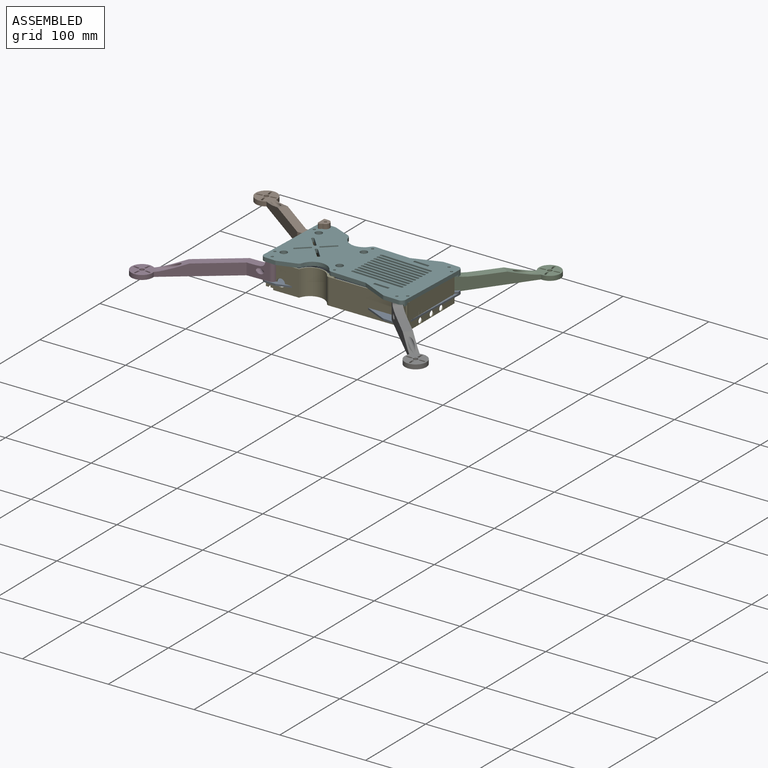
[diagram: assembled view]
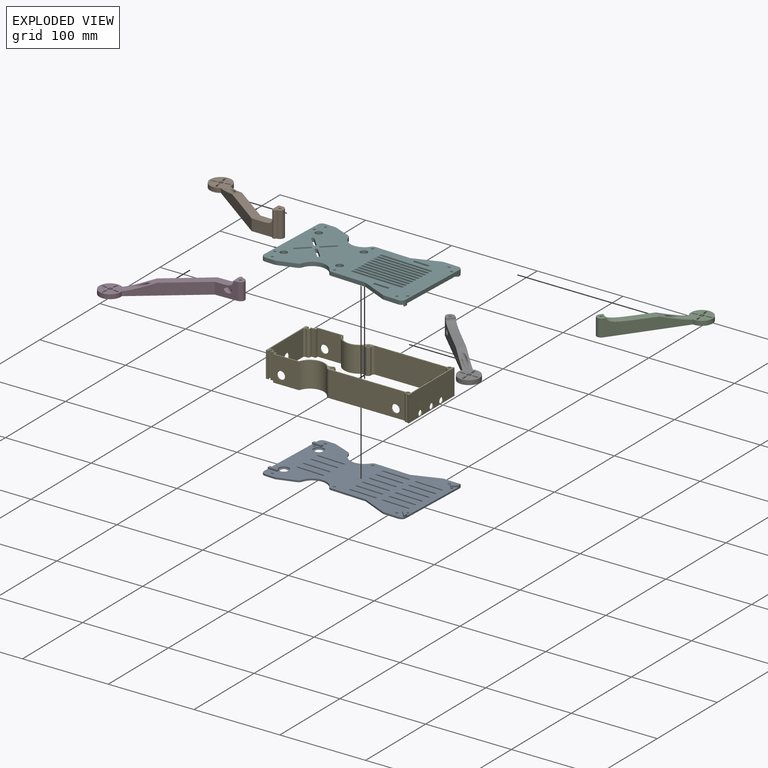
[diagram: exploded view]
GUIDED TOUR — MATED ASSEMBLY (Onshape document 4e5b3a6867eaf1757f32c168, AutoMate assembly 4e5b3a6867eaf1757f32c168_59065921e5721d0c5764df2e_1922234d884349384cbc1616_default)

This assembly has 7 components, labeled P0..P6 below (a component is one placed occurrence of a part; the same part can appear more than once), held together by 5 mates. A mate is a constraint between two components; its type names the relative motion it leaves free:
  REVOLUTE — leaves rotation about the listed axis free (a hinge).
Axis/direction vectors are unit vectors and 'through' points are millimeter coordinates, both in the assembly's world frame.

MATES
  1. REVOLUTE "Revolute 3": P6 <-> P5, axis (0.000, 0.000, 1.000) through (14.46, -40.16, 47.06) mm
  2. REVOLUTE "Revolute 2": P0 <-> P1, axis (0.000, 0.000, 1.000) through (-131.00, 48.73, 27.06) mm
  3. REVOLUTE "Revolute 6": P4 <-> P5, axis (0.000, 0.000, -1.000) through (22.74, -33.84, 47.06) mm
  4. REVOLUTE "Revolute 4": P3 <-> P5, axis (0.000, 0.000, 1.000) through (-134.28, -34.95, 47.06) mm
  5. REVOLUTE "Revolute 5": P2 <-> P0, axis (0.000, 0.000, -1.000) through (17.69, 42.28, 27.06) mm

ASSEMBLY ORDER
  1. P5 — the base component [order heuristic]
  2. P4 — core [order heuristic]
  3. P1 — core [order heuristic]
  4. P0 — core [order heuristic]
  5. P3 [order verified]
  6. P2 [order verified]
  7. P6 [order verified]
(P3 verified with a relaxed clearance tolerance: the source model stores slight part interference there.)
Order-tag legend:
  [order verified] — this step's position reverses a verified removal order: the component was checked to insert without passing through the ones already placed.
  [order heuristic] — the first 4 components form the assembly's core: parts whose collision-free extraction could not be verified, listed in mate-graph order.

Of the 7 components, 3 carry the full construction recipe — the FeatureScript program that regenerates the part's solid from scratch; the rest are supplied as boundary geometry only.
Each toured component is shown spotlighted twice — in the assembled view, then in the exploded view, where a leader line traces a displaced component back to its assembled socket (saturated green if recipe-attached, orange if geometry-only; every other component desaturated gray) — followed by its recipe or geometry summary and the mates that hold it.
NOTE — this tour is split across 2 documents so each fits a 32k-token context. This is document 1: the component sections continue in the remaining 1 document, each repeating the header above.
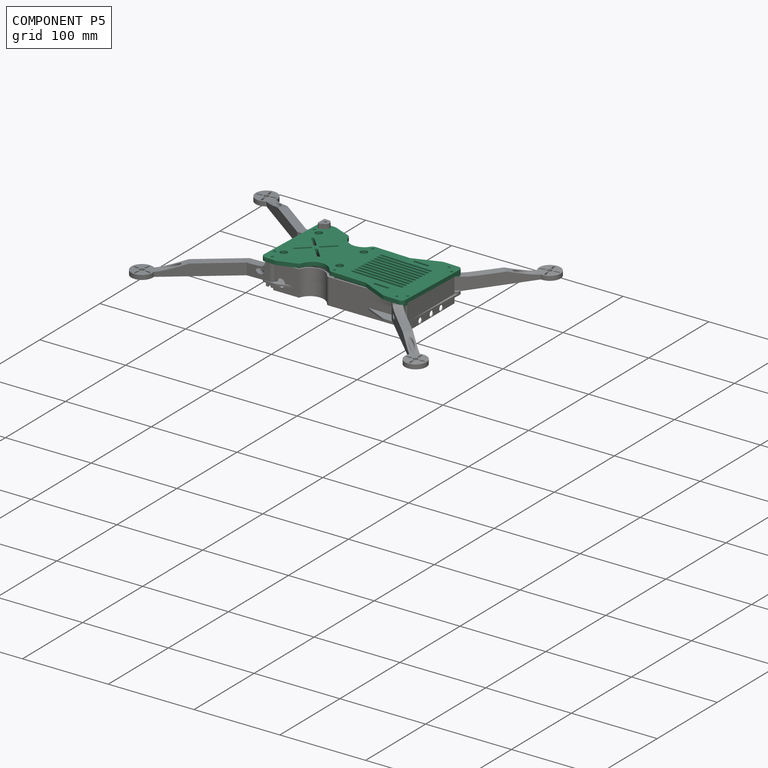
[diagram: component P5 — assembled]
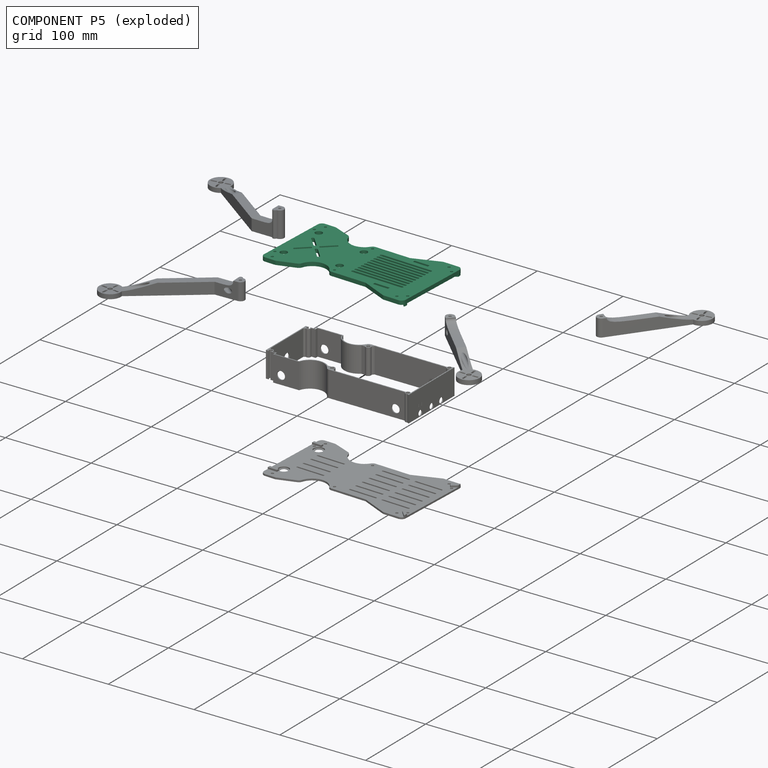
[diagram: component P5 — exploded]
COMPONENT P5 — recipe-attached (CADFS 00454907, mesh-verified: the recipe's output STEP matches this component's geometry to below the mesh-comparison resolution (tessellation chordal tolerance ~0.292 mm)).
Held by: REVOLUTE mate "Revolute 3" to P6; REVOLUTE mate "Revolute 6" to P4; REVOLUTE mate "Revolute 4" to P3.
Construction recipe (FeatureScript — the CAD program that rebuilds this solid; sketch coordinates are in the units given by the * unit suffixes, e.g. mm):

FeatureScript 2433;
import(path : "onshape/std/geometry.fs", version : "2433.0");
import(path : "onshape/std/common.fs", version : "2433.0");
const mm = millimeter;
const VERTEX = EntityType.VERTEX;
const EDGE = EntityType.EDGE;
const FACE = EntityType.FACE;
const BODY = EntityType.BODY;
function v(x, y){return vector(x, y);}
function OD(order){return orderDisambiguation(order);}
function OSD(set){return originalSetDisambiguation(set);}
function TD(topology){return topologyDisambiguation(topology);}
function TDD(query){return trueDependencyDisambiguation(query);}
function sQuery(a, b, c) {return sketchEntityQuery(a, b, c);}

annotation { "Feature Type Name" : "Feature", "Feature Type Description" : "" }
export const myFeature = defineFeature(function(context is Context, id is Id, definition is map)
    precondition{}
    {
        {
            var Q0;
            Q0=qCreatedBy(makeId("Top.planeOp"),FACE);
            var sketch = newSketch(context, id + "F0", { "sketchPlane" : qUnion([Q0])});
            skLineSegment(sketch, "E0.top", {"start": v(-158.33, 18) * mm, "end": v(-122.33, 18) * mm, "construction": true});
            skLineSegment(sketch, "E1.top", {"start": v(-2.46, 31.5) * mm, "end": v(-72.46, 31.5) * mm, "construction": true});
            skLineSegment(sketch, "E1.left", {"start": v(-2.46, 0) * mm, "end": v(-2.46, 31.5) * mm, "construction": true});
            skLineSegment(sketch, "E1.right", {"start": v(-72.46, 0) * mm, "end": v(-72.46, 31.5) * mm, "construction": true});
            skLineSegment(sketch, "E2.top", {"start": v(-5, 47.5) * mm, "end": v(-22.22, 47.5) * mm});
            skLineSegment(sketch, "E2.left", {"start": v(0, 35) * mm, "end": v(0, 42.5) * mm});
            skPoint(sketch, "E3.startSnap0", {"position": v(-23.2, 41.25) * mm});
            skPoint(sketch, "E3.startSnap1", {"position": v(-11.6, 47.5) * mm});
            skArc(sketch, "E4", {"start": v(-128.81, 36.72) * mm, "mid": v(-115.3, 25.02) * mm, "end": v(-99.14, 32.63) * mm});
            skLineSegment(sketch, "E5.trimOffspring", {"start": v(-94.88, 35) * mm, "end": v(-53.78, 35) * mm});
            skPoint(sketch, "E3.start.orphan", {"position": v(-11.6, 41.25) * mm});
            skCircle(sketch, "E6", {"center": v(-113.07, 41.25) * mm, "radius": 12.55 * mm, "construction": true});
            skLineSegment(sketch, "E7.top", {"start": v(-165, 47.5) * mm, "end": v(-149.65, 47.5) * mm});
            skLineSegment(sketch, "E7.left", {"start": v(-170, 35) * mm, "end": v(-170, 42.5) * mm});
            skLineSegment(sketch, "E8", {"start": v(-160.43, 41.87) * mm, "end": v(-136.46, 59) * mm, "construction": true});
            skPoint(sketch, "E8.startSnap0", {"position": v(-149.65, 47.5) * mm});
            skPoint(sketch, "E8.startSnap1", {"position": v(-170, 41.25) * mm});
            skLineSegment(sketch, "E9", {"start": v(-136.46, 59) * mm, "end": v(-62.44, 61.85) * mm, "construction": true});
            skLineSegment(sketch, "E10", {"start": v(-160.43, 41.87) * mm, "end": v(-62.44, 61.85) * mm, "construction": true});
            skCircle(sketch, "E11", {"center": v(-62.44, 61.85) * mm, "radius": 12.62 * mm, "construction": true});
            skLineSegment(sketch, "E12", {"start": v(-140.33, 0) * mm, "end": v(-158.33, 18) * mm, "construction": true});
            skLineSegment(sketch, "E13", {"start": v(-140.33, 0) * mm, "end": v(-122.33, 18) * mm, "construction": true});
            skArc(sketch, "E14", {"start": v(-153.5, 15.3) * mm, "mid": v(-155.63, 15.3) * mm, "end": v(-155.63, 13.18) * mm});
            skArc(sketch, "E15", {"start": v(-144.87, 2.42) * mm, "mid": v(-142.75, 2.42) * mm, "end": v(-142.75, 4.54) * mm});
            skArc(sketch, "E16", {"start": v(-137.91, 4.54) * mm, "mid": v(-137.91, 2.42) * mm, "end": v(-135.8, 2.42) * mm});
            skArc(sketch, "E17", {"start": v(-124.83, 13.38) * mm, "mid": v(-124.83, 15.5) * mm, "end": v(-126.95, 15.5) * mm});
            skLineSegment(sketch, "E18", {"start": v(-142.75, 4.54) * mm, "end": v(-153.5, 15.3) * mm});
            skLineSegment(sketch, "E19", {"start": v(-144.87, 2.42) * mm, "end": v(-155.63, 13.18) * mm});
            skLineSegment(sketch, "E20", {"start": v(-137.91, 4.54) * mm, "end": v(-126.95, 15.5) * mm});
            skLineSegment(sketch, "E21", {"start": v(-135.8, 2.42) * mm, "end": v(-124.83, 13.38) * mm});
            skLineSegment(sketch, "E22", {"start": v(-24.11, 47.13) * mm, "end": v(-53.78, 35) * mm});
            skCircle(sketch, "E23", {"center": v(-157.56, 27.6) * mm, "radius": 4.06 * mm});
            skCircle(sketch, "E24", {"center": v(-97.04, 19.15) * mm, "radius": 4.06 * mm});
            skPoint(sketch, "E2.bottom.end.orphan", {"position": v(-23.2, 35) * mm});
            skLineSegment(sketch, "E25.bottom", {"start": v(-28.53, 30) * mm, "end": v(-46.4, 30) * mm});
            skLineSegment(sketch, "E25.top", {"start": v(-28.53, 33) * mm, "end": v(-46.4, 33) * mm});
            skLineSegment(sketch, "E25.left", {"start": v(-28.53, 30) * mm, "end": v(-28.53, 33) * mm});
            skLineSegment(sketch, "E25.right", {"start": v(-46.4, 30) * mm, "end": v(-46.4, 33) * mm});
            skPoint(sketch, "E25.middle", {"position": v(-37.46, 31.5) * mm});
            skLineSegment(sketch, "E26", {"start": v(-131.92, 40.04) * mm, "end": v(-152.56, 47.5) * mm});
            skPoint(sketch, "E7.right.end.orphan", {"position": v(-129.3, 47.5) * mm});
            skPoint(sketch, "E27.visualSharp", {"position": v(-170, 47.5) * mm});
            skArc(sketch, "E27.filletArc", {"start": v(-165, 47.5) * mm, "mid": v(-168.54, 46.04) * mm, "end": v(-170, 42.5) * mm});
            skLineSegment(sketch, "E28", {"start": v(-2.46, 0) * mm, "end": v(-170, 0) * mm, "construction": true});
            skLineSegment(sketch, "E29", {"start": v(0, 35) * mm, "end": v(0, 0) * mm});
            skLineSegment(sketch, "E30", {"start": v(-170, 35) * mm, "end": v(-170, 0) * mm});
            skPoint(sketch, "E31.visualSharp", {"position": v(-129.3, 39.1) * mm});
            skArc(sketch, "E31.filletArc", {"start": v(-128.81, 36.72) * mm, "mid": v(-129.96, 38.75) * mm, "end": v(-131.92, 40.04) * mm});
            skPoint(sketch, "E32.visualSharp", {"position": v(-23.2, 47.5) * mm});
            skArc(sketch, "E32.filletArc", {"start": v(-22.22, 47.5) * mm, "mid": v(-23.19, 47.4) * mm, "end": v(-24.11, 47.13) * mm});
            skPoint(sketch, "E33.visualSharp", {"position": v(0, 47.5) * mm});
            skArc(sketch, "E33.filletArc", {"start": v(0, 42.5) * mm, "mid": v(-1.46, 46.04) * mm, "end": v(-5, 47.5) * mm});
            skPoint(sketch, "E34.visualSharp", {"position": v(-97.92, 35) * mm});
            skArc(sketch, "E34.filletArc", {"start": v(-94.88, 35) * mm, "mid": v(-97.32, 34.37) * mm, "end": v(-99.14, 32.63) * mm});
            skCircle(sketch, "E35", {"center": v(-94.88, 30) * mm, "radius": 1.5 * mm});
            skCircle(sketch, "E36", {"center": v(-165.6, 31.16) * mm, "radius": 1.5 * mm});
            skCircle(sketch, "E37", {"center": v(-3.57, 34.62) * mm, "radius": 1.5 * mm});
            skArc(sketch, "E38.MirrorCS", {"start": v(-22.22, -47.5) * mm, "mid": v(-23.19, -47.4) * mm, "end": v(-24.11, -47.13) * mm});
            skCircle(sketch, "E39.MirrorC", {"center": v(-94.88, -30) * mm, "radius": 1.5 * mm});
            skArc(sketch, "E40.MirrorCS", {"start": v(-137.91, -4.54) * mm, "mid": v(-137.91, -2.42) * mm, "end": v(-135.8, -2.42) * mm});
            skArc(sketch, "E41.MirrorCS", {"start": v(-144.87, -2.42) * mm, "mid": v(-142.75, -2.42) * mm, "end": v(-142.75, -4.54) * mm});
            skLineSegment(sketch, "E42.MirrorCS", {"start": v(-28.53, -30) * mm, "end": v(-28.53, -33) * mm});
            skArc(sketch, "E43.MirrorCS", {"start": v(-153.5, -15.3) * mm, "mid": v(-155.63, -15.3) * mm, "end": v(-155.63, -13.18) * mm});
            skArc(sketch, "E44.MirrorCS", {"start": v(-94.88, -35) * mm, "mid": v(-97.32, -34.37) * mm, "end": v(-99.14, -32.63) * mm});
            skLineSegment(sketch, "E45.MirrorCS", {"start": v(-46.4, -30) * mm, "end": v(-46.4, -33) * mm});
            skArc(sketch, "E46.MirrorCS", {"start": v(-124.83, -13.38) * mm, "mid": v(-124.83, -15.5) * mm, "end": v(-126.95, -15.5) * mm});
            skArc(sketch, "E47.MirrorCS", {"start": v(-128.81, -36.72) * mm, "mid": v(-129.96, -38.75) * mm, "end": v(-131.92, -40.04) * mm});
            skArc(sketch, "E48.MirrorCS", {"start": v(-165, -47.5) * mm, "mid": v(-168.54, -46.04) * mm, "end": v(-170, -42.5) * mm});
            skCircle(sketch, "E49.MirrorC", {"center": v(-3.57, -34.62) * mm, "radius": 1.5 * mm});
            skArc(sketch, "E50.MirrorCS", {"start": v(0, -42.5) * mm, "mid": v(-1.46, -46.04) * mm, "end": v(-5, -47.5) * mm});
            skCircle(sketch, "E51.MirrorC", {"center": v(-165.6, -31.16) * mm, "radius": 1.5 * mm});
            skLineSegment(sketch, "E52.MirrorCS", {"start": v(-170, -35) * mm, "end": v(-170, -42.5) * mm});
            skLineSegment(sketch, "E53.MirrorCS", {"start": v(-2.46, -31.5) * mm, "end": v(-72.46, -31.5) * mm, "construction": true});
            skLineSegment(sketch, "E54.MirrorCS", {"start": v(-24.11, -47.13) * mm, "end": v(-53.78, -35) * mm});
            skLineSegment(sketch, "E55.MirrorCS", {"start": v(-165, -47.5) * mm, "end": v(-149.65, -47.5) * mm});
            skCircle(sketch, "E56.MirrorC", {"center": v(-157.56, -27.6) * mm, "radius": 4.06 * mm});
            skLineSegment(sketch, "E57.MirrorCS", {"start": v(-135.8, -2.42) * mm, "end": v(-124.83, -13.38) * mm});
            skPoint(sketch, "E58.MirrorP", {"position": v(-37.46, -31.5) * mm});
            skPoint(sketch, "E59.MirrorP", {"position": v(-23.2, -35) * mm});
            skPoint(sketch, "E60.MirrorP", {"position": v(-129.3, -39.1) * mm});
            skPoint(sketch, "E61.MirrorP", {"position": v(-11.6, -41.25) * mm});
            skLineSegment(sketch, "E62.MirrorCS", {"start": v(-72.46, 0) * mm, "end": v(-72.46, -31.5) * mm, "construction": true});
            skLineSegment(sketch, "E63.MirrorCS", {"start": v(-5, -47.5) * mm, "end": v(-22.22, -47.5) * mm});
            skLineSegment(sketch, "E64.MirrorCS", {"start": v(-94.88, -35) * mm, "end": v(-53.78, -35) * mm});
            skArc(sketch, "E65.MirrorCS", {"start": v(-128.81, -36.72) * mm, "mid": v(-115.3, -25.02) * mm, "end": v(-99.14, -32.63) * mm});
            skPoint(sketch, "E66.MirrorP", {"position": v(-149.65, -47.5) * mm});
            skPoint(sketch, "E67.MirrorP", {"position": v(-23.2, -47.5) * mm});
            skLineSegment(sketch, "E68.MirrorCS", {"start": v(-170, -35) * mm, "end": v(-170, 0) * mm});
            skLineSegment(sketch, "E69.MirrorCS", {"start": v(0, -35) * mm, "end": v(0, -42.5) * mm});
            skPoint(sketch, "E70.MirrorP", {"position": v(-129.3, -47.5) * mm});
            skCircle(sketch, "E71.MirrorC", {"center": v(-113.07, -41.25) * mm, "radius": 12.55 * mm, "construction": true});
            skLineSegment(sketch, "E72.MirrorCS", {"start": v(-160.43, -41.87) * mm, "end": v(-136.46, -59) * mm, "construction": true});
            skLineSegment(sketch, "E73.MirrorCS", {"start": v(-158.33, -18) * mm, "end": v(-122.33, -18) * mm, "construction": true});
            skPoint(sketch, "E74.MirrorP", {"position": v(0, -47.5) * mm});
            skLineSegment(sketch, "E75.MirrorCS", {"start": v(-131.92, -40.04) * mm, "end": v(-152.56, -47.5) * mm});
            skPoint(sketch, "E76.MirrorP", {"position": v(-11.6, -47.5) * mm});
            skLineSegment(sketch, "E77.MirrorCS", {"start": v(-140.33, 0) * mm, "end": v(-122.33, -18) * mm, "construction": true});
            skLineSegment(sketch, "E78.MirrorCS", {"start": v(-2.46, 0) * mm, "end": v(-2.46, -31.5) * mm, "construction": true});
            skLineSegment(sketch, "E79.MirrorCS", {"start": v(-28.53, -30) * mm, "end": v(-46.4, -30) * mm});
            skPoint(sketch, "E80.MirrorP", {"position": v(-170, -41.25) * mm});
            skLineSegment(sketch, "E81.MirrorCS", {"start": v(-140.33, 0) * mm, "end": v(-158.33, -18) * mm, "construction": true});
            skLineSegment(sketch, "E82.MirrorCS", {"start": v(-28.53, -33) * mm, "end": v(-46.4, -33) * mm});
            skPoint(sketch, "E83.MirrorP", {"position": v(-97.92, -35) * mm});
            skLineSegment(sketch, "E84.MirrorCS", {"start": v(-160.43, -41.87) * mm, "end": v(-62.44, -61.85) * mm, "construction": true});
            skLineSegment(sketch, "E85.MirrorCS", {"start": v(0, -35) * mm, "end": v(0, 0) * mm});
            skLineSegment(sketch, "E86.MirrorCS", {"start": v(-136.46, -59) * mm, "end": v(-62.44, -61.85) * mm, "construction": true});
            skPoint(sketch, "E87.MirrorP", {"position": v(-170, -47.5) * mm});
            skCircle(sketch, "E88.MirrorC", {"center": v(-97.04, -19.15) * mm, "radius": 4.06 * mm});
            skLineSegment(sketch, "E89.MirrorCS", {"start": v(-142.75, -4.54) * mm, "end": v(-153.5, -15.3) * mm});
            skLineSegment(sketch, "E90.MirrorCS", {"start": v(-137.91, -4.54) * mm, "end": v(-126.95, -15.5) * mm});
            skLineSegment(sketch, "E91.MirrorCS", {"start": v(-144.87, -2.42) * mm, "end": v(-155.63, -13.18) * mm});
            skCircle(sketch, "E92.MirrorC", {"center": v(-62.44, -61.85) * mm, "radius": 12.62 * mm, "construction": true});
            skCircle(sketch, "E93", {"center": v(-11.6, 41.25) * mm, "radius": 1.5 * mm});
            skCircle(sketch, "E94", {"center": v(-160.43, 41.87) * mm, "radius": 1.5 * mm});
            skCircle(sketch, "E95.MirrorC", {"center": v(-11.6, -41.25) * mm, "radius": 1.5 * mm});
            skCircle(sketch, "E96.MirrorC", {"center": v(-160.43, -41.87) * mm, "radius": 1.5 * mm});
            skSolve(sketch);
        }
        {
            var Q0;
            Q0 = qSketchRegion(id + "F0", true);
            extrude(context, id + "F1", {"entities" : qUnion([Q0]), "depth" : 4.5 * mm});
        }
        {
            var Q0;
            Q0=makeQuery(id+"F1.opExtrude","CAP_FACE",FACE,{"disambiguationData":[OSD([sQuery(id+"F0.wireOp",EDGE,"E2.top"),sQuery(id+"F0.wireOp",EDGE,"E2.left"),sQuery(id+"F0.wireOp",EDGE,"E4"),sQuery(id+"F0.wireOp",EDGE,"E5.trimOffspring"),sQuery(id+"F0.wireOp",EDGE,"E7.top"),sQuery(id+"F0.wireOp",EDGE,"E7.left"),sQuery(id+"F0.wireOp",EDGE,"E14"),sQuery(id+"F0.wireOp",EDGE,"E15"),sQuery(id+"F0.wireOp",EDGE,"E16"),sQuery(id+"F0.wireOp",EDGE,"E17"),sQuery(id+"F0.wireOp",EDGE,"E18"),sQuery(id+"F0.wireOp",EDGE,"E19"),sQuery(id+"F0.wireOp",EDGE,"E20"),sQuery(id+"F0.wireOp",EDGE,"E21"),sQuery(id+"F0.wireOp",EDGE,"E22"),sQuery(id+"F0.wireOp",EDGE,"E23"),sQuery(id+"F0.wireOp",EDGE,"E24"),sQuery(id+"F0.wireOp",EDGE,"E25.bottom"),sQuery(id+"F0.wireOp",EDGE,"E25.top"),sQuery(id+"F0.wireOp",EDGE,"E25.left"),sQuery(id+"F0.wireOp",EDGE,"E25.right"),sQuery(id+"F0.wireOp",EDGE,"E26"),sQuery(id+"F0.wireOp",EDGE,"E27.filletArc"),sQuery(id+"F0.wireOp",EDGE,"E29"),sQuery(id+"F0.wireOp",EDGE,"E30"),sQuery(id+"F0.wireOp",EDGE,"E31.filletArc"),sQuery(id+"F0.wireOp",EDGE,"E32.filletArc"),sQuery(id+"F0.wireOp",EDGE,"E33.filletArc"),sQuery(id+"F0.wireOp",EDGE,"E34.filletArc"),sQuery(id+"F0.wireOp",EDGE,"E35"),sQuery(id+"F0.wireOp",EDGE,"E36"),sQuery(id+"F0.wireOp",EDGE,"E37"),sQuery(id+"F0.wireOp",EDGE,"dc92d004-a6ad-41b4-b321-0510745f16cf0.MirrorC"),sQuery(id+"F0.wireOp",EDGE,"E38.MirrorCS"),sQuery(id+"F0.wireOp",EDGE,"E39.MirrorC"),sQuery(id+"F0.wireOp",EDGE,"E40.MirrorCS"),sQuery(id+"F0.wireOp",EDGE,"E41.MirrorCS"),sQuery(id+"F0.wireOp",EDGE,"E42.MirrorCS"),sQuery(id+"F0.wireOp",EDGE,"E43.MirrorCS"),sQuery(id+"F0.wireOp",EDGE,"E44.MirrorCS"),sQuery(id+"F0.wireOp",EDGE,"E45.MirrorCS"),sQuery(id+"F0.wireOp",EDGE,"E46.MirrorCS"),sQuery(id+"F0.wireOp",EDGE,"E47.MirrorCS"),sQuery(id+"F0.wireOp",EDGE,"E48.MirrorCS"),sQuery(id+"F0.wireOp",EDGE,"E49.MirrorC"),sQuery(id+"F0.wireOp",EDGE,"E50.MirrorCS"),sQuery(id+"F0.wireOp",EDGE,"E51.MirrorC"),sQuery(id+"F0.wireOp",EDGE,"E52.MirrorCS"),sQuery(id+"F0.wireOp",EDGE,"E54.MirrorCS"),sQuery(id+"F0.wireOp",EDGE,"E55.MirrorCS"),sQuery(id+"F0.wireOp",EDGE,"E56.MirrorC"),sQuery(id+"F0.wireOp",EDGE,"E57.MirrorCS"),sQuery(id+"F0.wireOp",EDGE,"E63.MirrorCS"),sQuery(id+"F0.wireOp",EDGE,"E64.MirrorCS"),sQuery(id+"F0.wireOp",EDGE,"E65.MirrorCS"),sQuery(id+"F0.wireOp",EDGE,"E68.MirrorCS"),sQuery(id+"F0.wireOp",EDGE,"E69.MirrorCS"),sQuery(id+"F0.wireOp",EDGE,"E75.MirrorCS"),sQuery(id+"F0.wireOp",EDGE,"E79.MirrorCS"),sQuery(id+"F0.wireOp",EDGE,"E82.MirrorCS"),sQuery(id+"F0.wireOp",EDGE,"E85.MirrorCS"),sQuery(id+"F0.wireOp",EDGE,"E88.MirrorC"),sQuery(id+"F0.wireOp",EDGE,"E89.MirrorCS"),sQuery(id+"F0.wireOp",EDGE,"E90.MirrorCS"),sQuery(id+"F0.wireOp",EDGE,"E91.MirrorCS"),sQuery(id+"F0.wireOp",EDGE,"E93"),sQuery(id+"F0.wireOp",EDGE,"E94"),sQuery(id+"F0.wireOp",EDGE,"E95.MirrorC"),sQuery(id+"F0.wireOp",EDGE,"E96.MirrorC")])],"isStart":true});
            var sketch = newSketch(context, id + "F2", { "sketchPlane" : qUnion([Q0])});
            skLineSegment(sketch, "E97.bottom", {"start": v(-170, 33.34) * mm, "end": v(-159, 33.34) * mm});
            skLineSegment(sketch, "E97.top", {"start": v(-170, 36.59) * mm, "end": v(-159, 36.59) * mm});
            skLineSegment(sketch, "E97.left", {"start": v(-170, 33.34) * mm, "end": v(-170, 36.59) * mm});
            skLineSegment(sketch, "E97.right", {"start": v(-159, 33.34) * mm, "end": v(-159, 36.59) * mm});
            skLineSegment(sketch, "E98", {"start": v(-160.43, 41.87) * mm, "end": v(-160.43, 36.87) * mm, "construction": true});
            skLineSegment(sketch, "E99", {"start": v(-11.6, 41.25) * mm, "end": v(-8.07, 37.71) * mm, "construction": true});
            skLineSegment(sketch, "E100", {"start": v(-11.6, 41.25) * mm, "end": v(0, 41.25) * mm, "construction": true});
            skLineSegment(sketch, "E101", {"start": v(-7.7, 37.6) * mm, "end": v(-0.54, 44.75) * mm});
            skLineSegment(sketch, "E102", {"start": v(-7.7, 37.6) * mm, "end": v(-5.77, 35.67) * mm});
            skLineSegment(sketch, "E103", {"start": v(-5.77, 35.67) * mm, "end": v(0, 40.31) * mm});
            skArc(sketch, "E104.0", {"start": v(0, 42.5) * mm, "mid": v(-0.14, 43.66) * mm, "end": v(-0.54, 44.75) * mm});
            skLineSegment(sketch, "E105.0", {"start": v(0, 40.31) * mm, "end": v(0, 42.5) * mm});
            skPoint(sketch, "E106.orphan", {"position": v(-5, 47.5) * mm});
            skPoint(sketch, "E107.orphan", {"position": v(0, -42.5) * mm});
            skLineSegment(sketch, "E108", {"start": v(-170, 0) * mm, "end": v(0, 0) * mm, "construction": true});
            skLineSegment(sketch, "E109.MirrorCS", {"start": v(0, -40.31) * mm, "end": v(0, -42.5) * mm});
            skArc(sketch, "E110.MirrorCS", {"start": v(0, -42.5) * mm, "mid": v(-0.14, -43.66) * mm, "end": v(-0.54, -44.75) * mm});
            skLineSegment(sketch, "E111.MirrorCS", {"start": v(-7.7, -37.6) * mm, "end": v(-5.77, -35.67) * mm});
            skLineSegment(sketch, "E112.MirrorCS", {"start": v(-170, -33.34) * mm, "end": v(-170, -36.59) * mm});
            skLineSegment(sketch, "E113.MirrorCS", {"start": v(-159, -33.34) * mm, "end": v(-159, -36.59) * mm});
            skLineSegment(sketch, "E114.MirrorCS", {"start": v(-11.6, -41.25) * mm, "end": v(-8.07, -37.71) * mm, "construction": true});
            skLineSegment(sketch, "E115.MirrorCS", {"start": v(-5.77, -35.67) * mm, "end": v(0, -40.31) * mm});
            skLineSegment(sketch, "E116.MirrorCS", {"start": v(-11.6, -41.25) * mm, "end": v(0, -41.25) * mm, "construction": true});
            skLineSegment(sketch, "E117.MirrorCS", {"start": v(-160.43, -41.87) * mm, "end": v(-160.43, -36.87) * mm, "construction": true});
            skLineSegment(sketch, "E118.MirrorCS", {"start": v(-7.7, -37.6) * mm, "end": v(-0.54, -44.75) * mm});
            skPoint(sketch, "E119.MirrorP", {"position": v(-5, -47.5) * mm});
            skLineSegment(sketch, "E120.MirrorCS", {"start": v(-170, -33.34) * mm, "end": v(-159, -33.34) * mm});
            skLineSegment(sketch, "E121.MirrorCS", {"start": v(-170, -36.59) * mm, "end": v(-159, -36.59) * mm});
            skSolve(sketch);
        }
        {
            var Q0;
            Q0 = qSketchRegion(id + "F2", true);
            extrude(context, id + "F3", {"entities" : qUnion([Q0]), "operationType" : NewBodyOperationType.ADD, "depth" : 2 * mm});
        }
        {
            var Q0;
            Q0=makeQuery(id+"F1.opExtrude","CAP_FACE",FACE,{"disambiguationData":[OSD([sQuery(id+"F0.wireOp",EDGE,"E2.top"),sQuery(id+"F0.wireOp",EDGE,"E2.left"),sQuery(id+"F0.wireOp",EDGE,"E4"),sQuery(id+"F0.wireOp",EDGE,"E5.trimOffspring"),sQuery(id+"F0.wireOp",EDGE,"E7.top"),sQuery(id+"F0.wireOp",EDGE,"E7.left"),sQuery(id+"F0.wireOp",EDGE,"E14"),sQuery(id+"F0.wireOp",EDGE,"E15"),sQuery(id+"F0.wireOp",EDGE,"E16"),sQuery(id+"F0.wireOp",EDGE,"E17"),sQuery(id+"F0.wireOp",EDGE,"E18"),sQuery(id+"F0.wireOp",EDGE,"E19"),sQuery(id+"F0.wireOp",EDGE,"E20"),sQuery(id+"F0.wireOp",EDGE,"E21"),sQuery(id+"F0.wireOp",EDGE,"E22"),sQuery(id+"F0.wireOp",EDGE,"E23"),sQuery(id+"F0.wireOp",EDGE,"E24"),sQuery(id+"F0.wireOp",EDGE,"E25.bottom"),sQuery(id+"F0.wireOp",EDGE,"E25.top"),sQuery(id+"F0.wireOp",EDGE,"E25.left"),sQuery(id+"F0.wireOp",EDGE,"E25.right"),sQuery(id+"F0.wireOp",EDGE,"E26"),sQuery(id+"F0.wireOp",EDGE,"E27.filletArc"),sQuery(id+"F0.wireOp",EDGE,"E29"),sQuery(id+"F0.wireOp",EDGE,"E30"),sQuery(id+"F0.wireOp",EDGE,"E31.filletArc"),sQuery(id+"F0.wireOp",EDGE,"E32.filletArc"),sQuery(id+"F0.wireOp",EDGE,"E33.filletArc"),sQuery(id+"F0.wireOp",EDGE,"E34.filletArc"),sQuery(id+"F0.wireOp",EDGE,"E35"),sQuery(id+"F0.wireOp",EDGE,"E36"),sQuery(id+"F0.wireOp",EDGE,"E37"),sQuery(id+"F0.wireOp",EDGE,"dc92d004-a6ad-41b4-b321-0510745f16cf0.MirrorC"),sQuery(id+"F0.wireOp",EDGE,"E38.MirrorCS"),sQuery(id+"F0.wireOp",EDGE,"E39.MirrorC"),sQuery(id+"F0.wireOp",EDGE,"E40.MirrorCS"),sQuery(id+"F0.wireOp",EDGE,"E41.MirrorCS"),sQuery(id+"F0.wireOp",EDGE,"E42.MirrorCS"),sQuery(id+"F0.wireOp",EDGE,"E43.MirrorCS"),sQuery(id+"F0.wireOp",EDGE,"E44.MirrorCS"),sQuery(id+"F0.wireOp",EDGE,"E45.MirrorCS"),sQuery(id+"F0.wireOp",EDGE,"E46.MirrorCS"),sQuery(id+"F0.wireOp",EDGE,"E47.MirrorCS"),sQuery(id+"F0.wireOp",EDGE,"E48.MirrorCS"),sQuery(id+"F0.wireOp",EDGE,"E49.MirrorC"),sQuery(id+"F0.wireOp",EDGE,"E50.MirrorCS"),sQuery(id+"F0.wireOp",EDGE,"E51.MirrorC"),sQuery(id+"F0.wireOp",EDGE,"E52.MirrorCS"),sQuery(id+"F0.wireOp",EDGE,"E54.MirrorCS"),sQuery(id+"F0.wireOp",EDGE,"E55.MirrorCS"),sQuery(id+"F0.wireOp",EDGE,"E56.MirrorC"),sQuery(id+"F0.wireOp",EDGE,"E57.MirrorCS"),sQuery(id+"F0.wireOp",EDGE,"E63.MirrorCS"),sQuery(id+"F0.wireOp",EDGE,"E64.MirrorCS"),sQuery(id+"F0.wireOp",EDGE,"E65.MirrorCS"),sQuery(id+"F0.wireOp",EDGE,"E68.MirrorCS"),sQuery(id+"F0.wireOp",EDGE,"E69.MirrorCS"),sQuery(id+"F0.wireOp",EDGE,"E75.MirrorCS"),sQuery(id+"F0.wireOp",EDGE,"E79.MirrorCS"),sQuery(id+"F0.wireOp",EDGE,"E82.MirrorCS"),sQuery(id+"F0.wireOp",EDGE,"E85.MirrorCS"),sQuery(id+"F0.wireOp",EDGE,"E88.MirrorC"),sQuery(id+"F0.wireOp",EDGE,"E89.MirrorCS"),sQuery(id+"F0.wireOp",EDGE,"E90.MirrorCS"),sQuery(id+"F0.wireOp",EDGE,"E91.MirrorCS"),sQuery(id+"F0.wireOp",EDGE,"E93"),sQuery(id+"F0.wireOp",EDGE,"E94"),sQuery(id+"F0.wireOp",EDGE,"E95.MirrorC"),sQuery(id+"F0.wireOp",EDGE,"E96.MirrorC")])],"isStart":true});
            var sketch = newSketch(context, id + "F4", { "sketchPlane" : qUnion([Q0])});
            skCircle(sketch, "E122", {"center": v(-97.04, 19.15) * mm, "radius": 5.9 * mm});
            skCircle(sketch, "E123", {"center": v(-157.56, 27.6) * mm, "radius": 5.9 * mm});
            skCircle(sketch, "E124", {"center": v(-97.04, -19.15) * mm, "radius": 5.9 * mm});
            skCircle(sketch, "E125", {"center": v(-157.56, -27.6) * mm, "radius": 5.9 * mm});
            skSolve(sketch);
        }
        {
            var Q0;
            Q0 = qSketchRegion(id + "F4", true);
            extrude(context, id + "F5", {"entities" : qUnion([Q0]), "operationType" : NewBodyOperationType.REMOVE, "oppositeDirection" : true, "depth" : 2 * mm});
        }
        {
            var Q0;
            Q0=makeQuery(id+"F1.opExtrude","CAP_FACE",FACE,{"disambiguationData":[OSD([sQuery(id+"F0.wireOp",EDGE,"E2.top"),sQuery(id+"F0.wireOp",EDGE,"E2.left"),sQuery(id+"F0.wireOp",EDGE,"E4"),sQuery(id+"F0.wireOp",EDGE,"E5.trimOffspring"),sQuery(id+"F0.wireOp",EDGE,"E7.top"),sQuery(id+"F0.wireOp",EDGE,"E7.left"),sQuery(id+"F0.wireOp",EDGE,"E14"),sQuery(id+"F0.wireOp",EDGE,"E15"),sQuery(id+"F0.wireOp",EDGE,"E16"),sQuery(id+"F0.wireOp",EDGE,"E17"),sQuery(id+"F0.wireOp",EDGE,"E18"),sQuery(id+"F0.wireOp",EDGE,"E19"),sQuery(id+"F0.wireOp",EDGE,"E20"),sQuery(id+"F0.wireOp",EDGE,"E21"),sQuery(id+"F0.wireOp",EDGE,"E22"),sQuery(id+"F0.wireOp",EDGE,"E23"),sQuery(id+"F0.wireOp",EDGE,"E24"),sQuery(id+"F0.wireOp",EDGE,"E25.bottom"),sQuery(id+"F0.wireOp",EDGE,"E25.top"),sQuery(id+"F0.wireOp",EDGE,"E25.left"),sQuery(id+"F0.wireOp",EDGE,"E25.right"),sQuery(id+"F0.wireOp",EDGE,"E26"),sQuery(id+"F0.wireOp",EDGE,"E27.filletArc"),sQuery(id+"F0.wireOp",EDGE,"E29"),sQuery(id+"F0.wireOp",EDGE,"E30"),sQuery(id+"F0.wireOp",EDGE,"E31.filletArc"),sQuery(id+"F0.wireOp",EDGE,"E32.filletArc"),sQuery(id+"F0.wireOp",EDGE,"E33.filletArc"),sQuery(id+"F0.wireOp",EDGE,"E34.filletArc"),sQuery(id+"F0.wireOp",EDGE,"E35"),sQuery(id+"F0.wireOp",EDGE,"E36"),sQuery(id+"F0.wireOp",EDGE,"E37"),sQuery(id+"F0.wireOp",EDGE,"dc92d004-a6ad-41b4-b321-0510745f16cf0.MirrorC"),sQuery(id+"F0.wireOp",EDGE,"E38.MirrorCS"),sQuery(id+"F0.wireOp",EDGE,"E39.MirrorC"),sQuery(id+"F0.wireOp",EDGE,"E40.MirrorCS"),sQuery(id+"F0.wireOp",EDGE,"E41.MirrorCS"),sQuery(id+"F0.wireOp",EDGE,"E42.MirrorCS"),sQuery(id+"F0.wireOp",EDGE,"E43.MirrorCS"),sQuery(id+"F0.wireOp",EDGE,"E44.MirrorCS"),sQuery(id+"F0.wireOp",EDGE,"E45.MirrorCS"),sQuery(id+"F0.wireOp",EDGE,"E46.MirrorCS"),sQuery(id+"F0.wireOp",EDGE,"E47.MirrorCS"),sQuery(id+"F0.wireOp",EDGE,"E48.MirrorCS"),sQuery(id+"F0.wireOp",EDGE,"E49.MirrorC"),sQuery(id+"F0.wireOp",EDGE,"E50.MirrorCS"),sQuery(id+"F0.wireOp",EDGE,"E51.MirrorC"),sQuery(id+"F0.wireOp",EDGE,"E52.MirrorCS"),sQuery(id+"F0.wireOp",EDGE,"E54.MirrorCS"),sQuery(id+"F0.wireOp",EDGE,"E55.MirrorCS"),sQuery(id+"F0.wireOp",EDGE,"E56.MirrorC"),sQuery(id+"F0.wireOp",EDGE,"E57.MirrorCS"),sQuery(id+"F0.wireOp",EDGE,"E63.MirrorCS"),sQuery(id+"F0.wireOp",EDGE,"E64.MirrorCS"),sQuery(id+"F0.wireOp",EDGE,"E65.MirrorCS"),sQuery(id+"F0.wireOp",EDGE,"E68.MirrorCS"),sQuery(id+"F0.wireOp",EDGE,"E69.MirrorCS"),sQuery(id+"F0.wireOp",EDGE,"E75.MirrorCS"),sQuery(id+"F0.wireOp",EDGE,"E79.MirrorCS"),sQuery(id+"F0.wireOp",EDGE,"E82.MirrorCS"),sQuery(id+"F0.wireOp",EDGE,"E85.MirrorCS"),sQuery(id+"F0.wireOp",EDGE,"E88.MirrorC"),sQuery(id+"F0.wireOp",EDGE,"E89.MirrorCS"),sQuery(id+"F0.wireOp",EDGE,"E90.MirrorCS"),sQuery(id+"F0.wireOp",EDGE,"E91.MirrorCS"),sQuery(id+"F0.wireOp",EDGE,"E93"),sQuery(id+"F0.wireOp",EDGE,"E94"),sQuery(id+"F0.wireOp",EDGE,"E95.MirrorC"),sQuery(id+"F0.wireOp",EDGE,"E96.MirrorC")])],"isStart":true});
            var sketch = newSketch(context, id + "F6", { "sketchPlane" : qUnion([Q0])});
            skArc(sketch, "E126.0.startCap", {"start": v(-79.23, 20.11) * mm, "mid": v(-80.73, 21.61) * mm, "end": v(-79.23, 23.11) * mm});
            skArc(sketch, "E126.0.endCap", {"start": v(-20.46, 23.11) * mm, "mid": v(-18.96, 21.61) * mm, "end": v(-20.46, 20.11) * mm});
            skLineSegment(sketch, "E126.0.left", {"start": v(-79.23, 23.11) * mm, "end": v(-20.46, 23.11) * mm});
            skLineSegment(sketch, "E126.0.right", {"start": v(-79.23, 20.11) * mm, "end": v(-20.46, 20.11) * mm});
            skLineSegment(sketch, "E127.0.1.0", {"start": v(-79.23, 18.11) * mm, "end": v(-20.46, 18.11) * mm});
            skArc(sketch, "E127.0.1.1", {"start": v(-79.23, 15.11) * mm, "mid": v(-80.73, 16.61) * mm, "end": v(-79.23, 18.11) * mm});
            skLineSegment(sketch, "E127.0.1.2", {"start": v(-79.23, 15.11) * mm, "end": v(-20.46, 15.11) * mm});
            skArc(sketch, "E127.0.1.3", {"start": v(-20.46, 18.11) * mm, "mid": v(-18.96, 16.61) * mm, "end": v(-20.46, 15.11) * mm});
            skLineSegment(sketch, "E127.0.2.0", {"start": v(-79.23, 13.11) * mm, "end": v(-20.46, 13.11) * mm});
            skArc(sketch, "E127.0.2.1", {"start": v(-79.23, 10.11) * mm, "mid": v(-80.73, 11.61) * mm, "end": v(-79.23, 13.11) * mm});
            skLineSegment(sketch, "E127.0.2.2", {"start": v(-79.23, 10.11) * mm, "end": v(-20.46, 10.11) * mm});
            skArc(sketch, "E127.0.2.3", {"start": v(-20.46, 13.11) * mm, "mid": v(-18.96, 11.61) * mm, "end": v(-20.46, 10.11) * mm});
            skLineSegment(sketch, "E127.0.3.0", {"start": v(-79.23, 8.11) * mm, "end": v(-20.46, 8.11) * mm});
            skArc(sketch, "E127.0.3.1", {"start": v(-79.23, 5.11) * mm, "mid": v(-80.73, 6.61) * mm, "end": v(-79.23, 8.11) * mm});
            skLineSegment(sketch, "E127.0.3.2", {"start": v(-79.23, 5.11) * mm, "end": v(-20.46, 5.11) * mm});
            skArc(sketch, "E127.0.3.3", {"start": v(-20.46, 8.11) * mm, "mid": v(-18.96, 6.61) * mm, "end": v(-20.46, 5.11) * mm});
            skLineSegment(sketch, "E127.0.4.0", {"start": v(-79.23, 3.11) * mm, "end": v(-20.46, 3.11) * mm});
            skArc(sketch, "E127.0.4.1", {"start": v(-79.23, 0.11) * mm, "mid": v(-80.73, 1.61) * mm, "end": v(-79.23, 3.11) * mm});
            skLineSegment(sketch, "E127.0.4.2", {"start": v(-79.23, 0.11) * mm, "end": v(-20.46, 0.11) * mm});
            skArc(sketch, "E127.0.4.3", {"start": v(-20.46, 3.11) * mm, "mid": v(-18.96, 1.61) * mm, "end": v(-20.46, 0.11) * mm});
            skLineSegment(sketch, "E127.0.5.0", {"start": v(-79.23, -1.89) * mm, "end": v(-20.46, -1.89) * mm});
            skArc(sketch, "E127.0.5.1", {"start": v(-79.23, -4.89) * mm, "mid": v(-80.73, -3.39) * mm, "end": v(-79.23, -1.89) * mm});
            skLineSegment(sketch, "E127.0.5.2", {"start": v(-79.23, -4.89) * mm, "end": v(-20.46, -4.89) * mm});
            skArc(sketch, "E127.0.5.3", {"start": v(-20.46, -1.89) * mm, "mid": v(-18.96, -3.39) * mm, "end": v(-20.46, -4.89) * mm});
            skLineSegment(sketch, "E127.0.6.0", {"start": v(-79.23, -6.89) * mm, "end": v(-20.46, -6.89) * mm});
            skArc(sketch, "E127.0.6.1", {"start": v(-79.23, -9.89) * mm, "mid": v(-80.73, -8.39) * mm, "end": v(-79.23, -6.89) * mm});
            skLineSegment(sketch, "E127.0.6.2", {"start": v(-79.23, -9.89) * mm, "end": v(-20.46, -9.89) * mm});
            skArc(sketch, "E127.0.6.3", {"start": v(-20.46, -6.89) * mm, "mid": v(-18.96, -8.39) * mm, "end": v(-20.46, -9.89) * mm});
            skLineSegment(sketch, "E127.0.7.0", {"start": v(-79.23, -11.89) * mm, "end": v(-20.46, -11.89) * mm});
            skArc(sketch, "E127.0.7.1", {"start": v(-79.23, -14.89) * mm, "mid": v(-80.73, -13.39) * mm, "end": v(-79.23, -11.89) * mm});
            skLineSegment(sketch, "E127.0.7.2", {"start": v(-79.23, -14.89) * mm, "end": v(-20.46, -14.89) * mm});
            skArc(sketch, "E127.0.7.3", {"start": v(-20.46, -11.89) * mm, "mid": v(-18.96, -13.39) * mm, "end": v(-20.46, -14.89) * mm});
            skLineSegment(sketch, "E127.0.8.0", {"start": v(-79.23, -16.89) * mm, "end": v(-20.46, -16.89) * mm});
            skArc(sketch, "E127.0.8.1", {"start": v(-79.23, -19.89) * mm, "mid": v(-80.73, -18.39) * mm, "end": v(-79.23, -16.89) * mm});
            skLineSegment(sketch, "E127.0.8.2", {"start": v(-79.23, -19.89) * mm, "end": v(-20.46, -19.89) * mm});
            skArc(sketch, "E127.0.8.3", {"start": v(-20.46, -16.89) * mm, "mid": v(-18.96, -18.39) * mm, "end": v(-20.46, -19.89) * mm});
            skLineSegment(sketch, "E127.0.9.0", {"start": v(-79.23, -21.89) * mm, "end": v(-20.46, -21.89) * mm});
            skArc(sketch, "E127.0.9.1", {"start": v(-79.23, -24.89) * mm, "mid": v(-80.73, -23.39) * mm, "end": v(-79.23, -21.89) * mm});
            skLineSegment(sketch, "E127.0.9.2", {"start": v(-79.23, -24.89) * mm, "end": v(-20.46, -24.89) * mm});
            skArc(sketch, "E127.0.9.3", {"start": v(-20.46, -21.89) * mm, "mid": v(-18.96, -23.39) * mm, "end": v(-20.46, -24.89) * mm});
            skLineSegment(sketch, "E127.direction1", {"start": v(-79.23, 23.11) * mm, "end": v(-54.23, 23.11) * mm, "construction": true});
            skLineSegment(sketch, "E127.direction2", {"start": v(-79.23, 23.11) * mm, "end": v(-79.23, 18.11) * mm, "construction": true});
            skSolve(sketch);
        }
        {
            var Q0;
            Q0 = qSketchRegion(id + "F6", true);
            extrude(context, id + "F7", {"entities" : qUnion([Q0]), "operationType" : NewBodyOperationType.REMOVE, "oppositeDirection" : true, "depth" : 25 * mm});
        }
    });
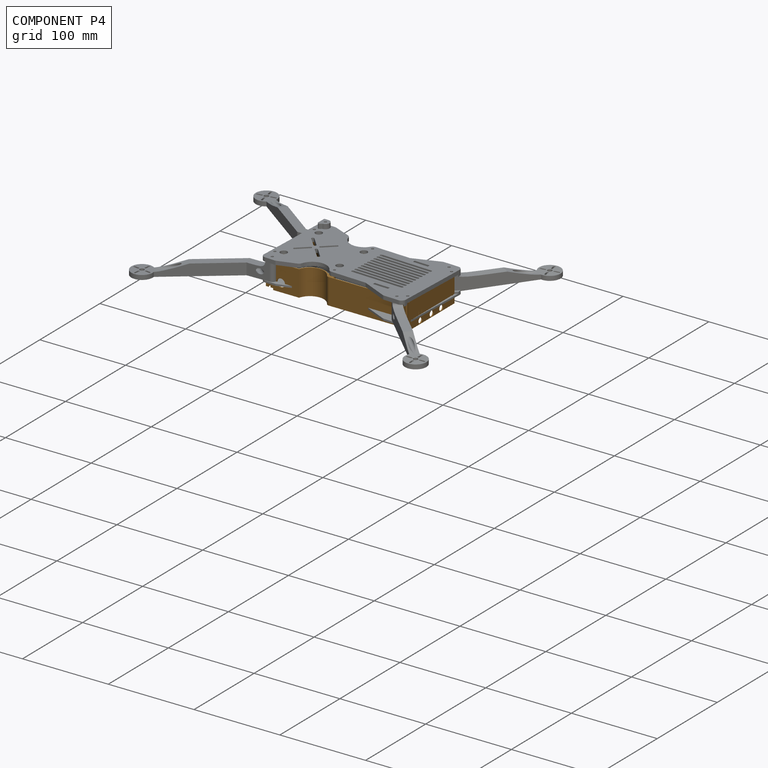
[diagram: component P4 — assembled]
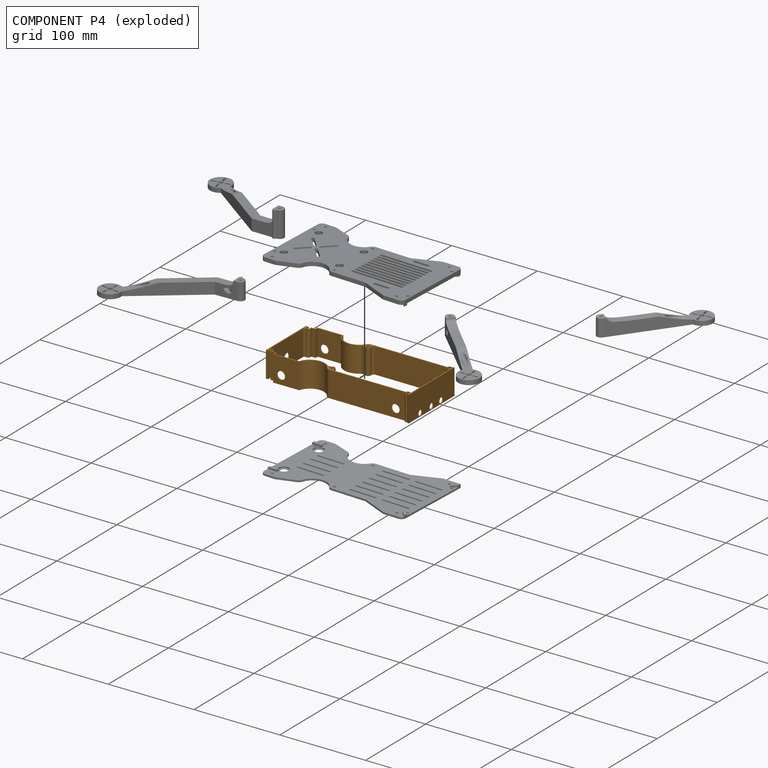
[diagram: component P4 — exploded]
COMPONENT P4 — geometry summary (no construction recipe available for this part):
  bounding box: 170.0 x 76.3 x 30.0 mm
  B-rep topology: 1 solid, 76 faces, 452 edges
  volume: 20399 mm^3 (5% of its bounding box)
  symmetry: mirror-symmetric across its y mid-plane
Held by: REVOLUTE mate "Revolute 6" to P5.
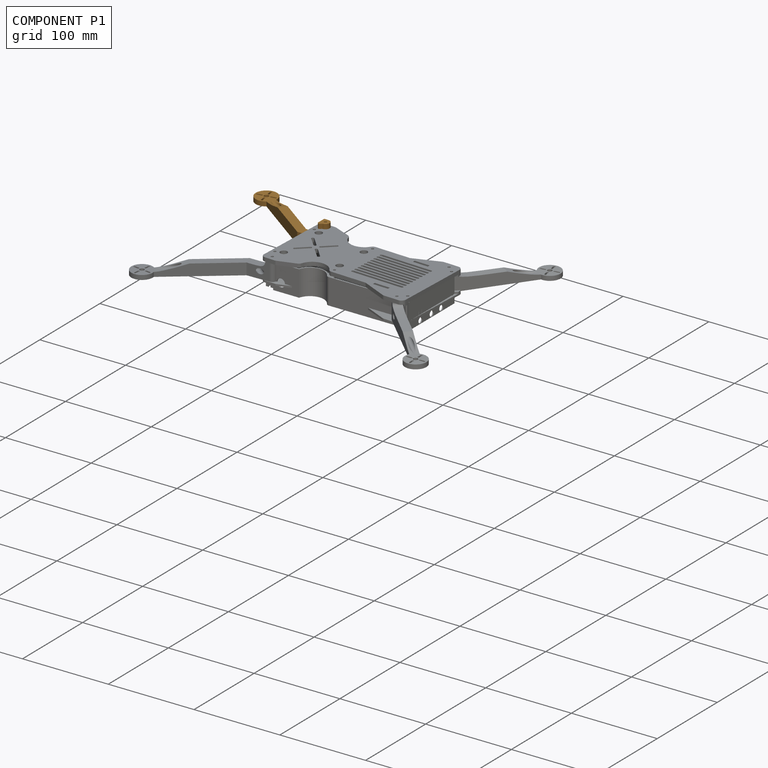
[diagram: component P1 — assembled]
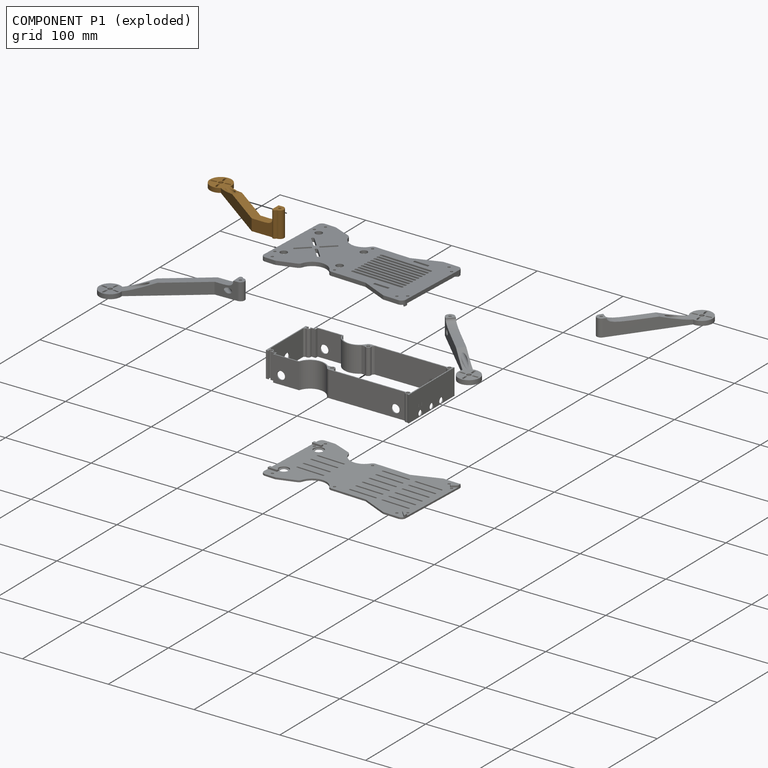
[diagram: component P1 — exploded]
COMPONENT P1 — geometry summary (no construction recipe available for this part):
  bounding box: 141.4 x 34.8 x 30.0 mm
  B-rep topology: 1 solid, 37 faces, 204 edges
  volume: 15802 mm^3 (11% of its bounding box)
Held by: REVOLUTE mate "Revolute 2" to P0.
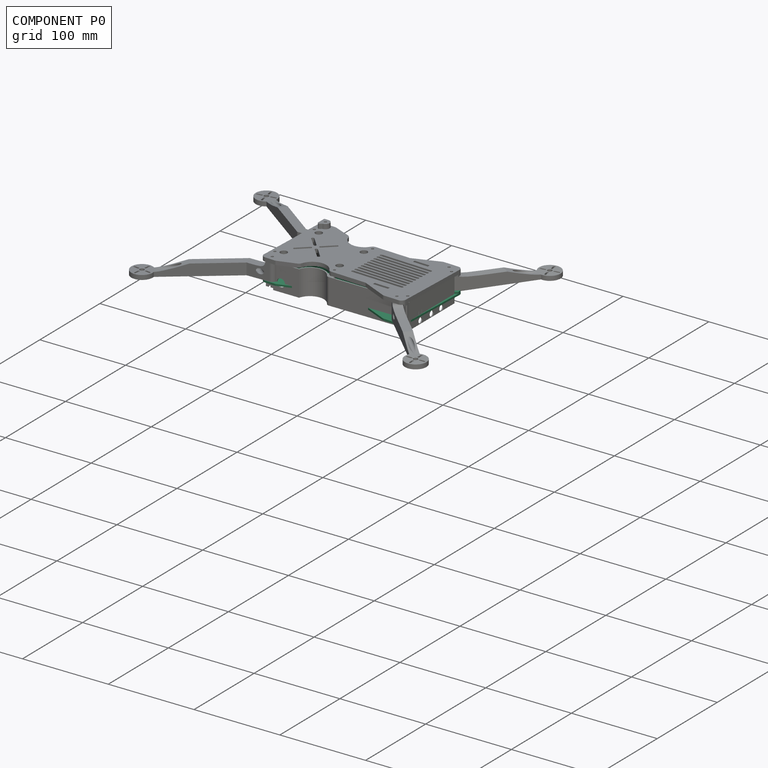
[diagram: component P0 — assembled]
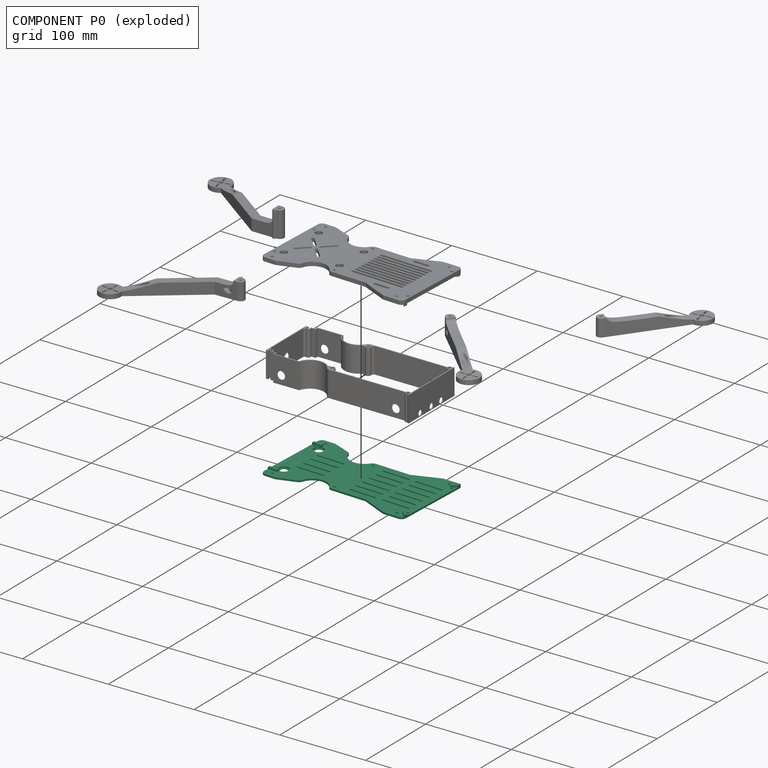
[diagram: component P0 — exploded]
COMPONENT P0 — recipe-attached (CADFS 00454910, mesh-verified: the recipe's output STEP matches this component's geometry to below the mesh-comparison resolution (tessellation chordal tolerance ~0.292 mm)).
Held by: REVOLUTE mate "Revolute 2" to P1; REVOLUTE mate "Revolute 5" to P2.
Construction recipe (FeatureScript — the CAD program that rebuilds this solid; sketch coordinates are in the units given by the * unit suffixes, e.g. mm):

FeatureScript 2433;
import(path : "onshape/std/geometry.fs", version : "2433.0");
import(path : "onshape/std/common.fs", version : "2433.0");
const mm = millimeter;
const VERTEX = EntityType.VERTEX;
const EDGE = EntityType.EDGE;
const FACE = EntityType.FACE;
const BODY = EntityType.BODY;
function v(x, y){return vector(x, y);}
function OD(order){return orderDisambiguation(order);}
function OSD(set){return originalSetDisambiguation(set);}
function TD(topology){return topologyDisambiguation(topology);}
function TDD(query){return trueDependencyDisambiguation(query);}
function sQuery(a, b, c) {return sketchEntityQuery(a, b, c);}

annotation { "Feature Type Name" : "Feature", "Feature Type Description" : "" }
export const myFeature = defineFeature(function(context is Context, id is Id, definition is map)
    precondition{}
    {
        {
            var Q0;
            Q0=qCreatedBy(makeId("Top.planeOp"),FACE);
            var sketch = newSketch(context, id + "F0", { "sketchPlane" : qUnion([Q0])});
            skLineSegment(sketch, "E0.top", {"start": v(-5, 47.5) * mm, "end": v(-22.22, 47.5) * mm});
            skLineSegment(sketch, "E0.left", {"start": v(0, 35) * mm, "end": v(0, 42.5) * mm});
            skPoint(sketch, "E1.startSnap0", {"position": v(-23.2, 41.25) * mm});
            skPoint(sketch, "E1.startSnap1", {"position": v(-11.6, 47.5) * mm});
            skArc(sketch, "E2", {"start": v(-128.81, 36.72) * mm, "mid": v(-115.3, 25.02) * mm, "end": v(-99.14, 32.63) * mm});
            skLineSegment(sketch, "E3.trimOffspring", {"start": v(-94.88, 35) * mm, "end": v(-53.78, 35) * mm});
            skPoint(sketch, "E1.start.orphan", {"position": v(-11.6, 41.25) * mm});
            skCircle(sketch, "E4", {"center": v(-113.07, 41.25) * mm, "radius": 12.55 * mm, "construction": true});
            skLineSegment(sketch, "E5.top", {"start": v(-165, 47.5) * mm, "end": v(-149.65, 47.5) * mm});
            skLineSegment(sketch, "E5.left", {"start": v(-170, 35) * mm, "end": v(-170, 42.5) * mm});
            skLineSegment(sketch, "E6", {"start": v(-160.43, 41.87) * mm, "end": v(-136.46, 59) * mm, "construction": true});
            skPoint(sketch, "E6.startSnap0", {"position": v(-149.65, 47.5) * mm});
            skPoint(sketch, "E6.startSnap1", {"position": v(-170, 41.25) * mm});
            skLineSegment(sketch, "E7", {"start": v(-136.46, 59) * mm, "end": v(-62.44, 61.85) * mm, "construction": true});
            skLineSegment(sketch, "E8", {"start": v(-160.43, 41.87) * mm, "end": v(-62.44, 61.85) * mm, "construction": true});
            skCircle(sketch, "E9", {"center": v(-62.44, 61.85) * mm, "radius": 12.62 * mm, "construction": true});
            skLineSegment(sketch, "E10", {"start": v(-24.11, 47.13) * mm, "end": v(-53.78, 35) * mm});
            skCircle(sketch, "E11", {"center": v(-157.56, 27.6) * mm, "radius": 4.06 * mm});
            skPoint(sketch, "E0.bottom.end.orphan", {"position": v(-23.2, 35) * mm});
            skPoint(sketch, "E12.middle", {"position": v(-37.46, 31.5) * mm});
            skLineSegment(sketch, "E13", {"start": v(-131.92, 40.04) * mm, "end": v(-152.56, 47.5) * mm});
            skPoint(sketch, "E5.right.end.orphan", {"position": v(-129.3, 47.5) * mm});
            skPoint(sketch, "E14.visualSharp", {"position": v(-170, 47.5) * mm});
            skArc(sketch, "E14.filletArc", {"start": v(-165, 47.5) * mm, "mid": v(-168.54, 46.04) * mm, "end": v(-170, 42.5) * mm});
            skLineSegment(sketch, "E15", {"start": v(-2.46, 0) * mm, "end": v(-170, 0) * mm, "construction": true});
            skLineSegment(sketch, "E16", {"start": v(0, 35) * mm, "end": v(0, 0) * mm});
            skLineSegment(sketch, "E17", {"start": v(-170, 35) * mm, "end": v(-170, 0) * mm});
            skPoint(sketch, "E18.visualSharp", {"position": v(-129.3, 39.1) * mm});
            skArc(sketch, "E18.filletArc", {"start": v(-128.81, 36.72) * mm, "mid": v(-129.96, 38.75) * mm, "end": v(-131.92, 40.04) * mm});
            skPoint(sketch, "E19.visualSharp", {"position": v(-23.2, 47.5) * mm});
            skArc(sketch, "E19.filletArc", {"start": v(-22.22, 47.5) * mm, "mid": v(-23.19, 47.4) * mm, "end": v(-24.11, 47.13) * mm});
            skPoint(sketch, "E20.visualSharp", {"position": v(0, 47.5) * mm});
            skArc(sketch, "E20.filletArc", {"start": v(0, 42.5) * mm, "mid": v(-1.46, 46.04) * mm, "end": v(-5, 47.5) * mm});
            skPoint(sketch, "E21.visualSharp", {"position": v(-97.92, 35) * mm});
            skArc(sketch, "E21.filletArc", {"start": v(-94.88, 35) * mm, "mid": v(-97.32, 34.37) * mm, "end": v(-99.14, 32.63) * mm});
            skCircle(sketch, "E22", {"center": v(-94.88, 30) * mm, "radius": 1.5 * mm});
            skCircle(sketch, "E23", {"center": v(-165.6, 31.16) * mm, "radius": 1.5 * mm});
            skCircle(sketch, "E24", {"center": v(-3.57, 34.62) * mm, "radius": 1.5 * mm});
            skCircle(sketch, "E25", {"center": v(-11.6, 41.25) * mm, "radius": 1.5 * mm});
            skCircle(sketch, "E26", {"center": v(-160.43, 41.87) * mm, "radius": 1.5 * mm});
            skLineSegment(sketch, "E27", {"start": v(-9, 26.08) * mm, "end": v(-40.04, 26.08) * mm, "construction": true});
            skArc(sketch, "E28.0.startCap", {"start": v(-9, 27.08) * mm, "mid": v(-8, 26.08) * mm, "end": v(-9, 25.08) * mm});
            skArc(sketch, "E28.0.endCap", {"start": v(-40.04, 25.08) * mm, "mid": v(-41.04, 26.08) * mm, "end": v(-40.04, 27.08) * mm});
            skLineSegment(sketch, "E28.0.left", {"start": v(-9, 25.08) * mm, "end": v(-40.04, 25.08) * mm});
            skLineSegment(sketch, "E28.0.right", {"start": v(-9, 27.08) * mm, "end": v(-40.04, 27.08) * mm});
            skLineSegment(sketch, "E29.0.1.0", {"start": v(-9, 16.78) * mm, "end": v(-40.04, 16.78) * mm});
            skLineSegment(sketch, "E29.0.1.1", {"start": v(-9, 14.78) * mm, "end": v(-40.04, 14.78) * mm});
            skLineSegment(sketch, "E29.0.1.2", {"start": v(-9, 15.78) * mm, "end": v(-40.04, 15.78) * mm, "construction": true});
            skArc(sketch, "E29.0.1.3", {"start": v(-9, 16.78) * mm, "mid": v(-8, 15.78) * mm, "end": v(-9, 14.78) * mm});
            skArc(sketch, "E29.0.1.4", {"start": v(-40.04, 14.78) * mm, "mid": v(-41.04, 15.78) * mm, "end": v(-40.04, 16.78) * mm});
            skLineSegment(sketch, "E29.0.2.0", {"start": v(-9, 6.48) * mm, "end": v(-40.04, 6.48) * mm});
            skLineSegment(sketch, "E29.0.2.1", {"start": v(-9, 4.48) * mm, "end": v(-40.04, 4.48) * mm});
            skLineSegment(sketch, "E29.0.2.2", {"start": v(-9, 5.48) * mm, "end": v(-40.04, 5.48) * mm, "construction": true});
            skArc(sketch, "E29.0.2.3", {"start": v(-9, 6.48) * mm, "mid": v(-8, 5.48) * mm, "end": v(-9, 4.48) * mm});
            skArc(sketch, "E29.0.2.4", {"start": v(-40.04, 4.48) * mm, "mid": v(-41.04, 5.48) * mm, "end": v(-40.04, 6.48) * mm});
            skLineSegment(sketch, "E29.1.0.0", {"start": v(-48.3, 27.08) * mm, "end": v(-79.34, 27.08) * mm});
            skLineSegment(sketch, "E29.1.0.1", {"start": v(-48.3, 25.08) * mm, "end": v(-79.34, 25.08) * mm});
            skLineSegment(sketch, "E29.1.0.2", {"start": v(-48.3, 26.08) * mm, "end": v(-79.34, 26.08) * mm, "construction": true});
            skArc(sketch, "E29.1.0.3", {"start": v(-48.3, 27.08) * mm, "mid": v(-47.3, 26.08) * mm, "end": v(-48.3, 25.08) * mm});
            skArc(sketch, "E29.1.0.4", {"start": v(-79.34, 25.08) * mm, "mid": v(-80.34, 26.08) * mm, "end": v(-79.34, 27.08) * mm});
            skLineSegment(sketch, "E29.1.1.0", {"start": v(-48.3, 16.78) * mm, "end": v(-79.34, 16.78) * mm});
            skLineSegment(sketch, "E29.1.1.1", {"start": v(-48.3, 14.78) * mm, "end": v(-79.34, 14.78) * mm});
            skLineSegment(sketch, "E29.1.1.2", {"start": v(-48.3, 15.78) * mm, "end": v(-79.34, 15.78) * mm, "construction": true});
            skArc(sketch, "E29.1.1.3", {"start": v(-48.3, 16.78) * mm, "mid": v(-47.3, 15.78) * mm, "end": v(-48.3, 14.78) * mm});
            skArc(sketch, "E29.1.1.4", {"start": v(-79.34, 14.78) * mm, "mid": v(-80.34, 15.78) * mm, "end": v(-79.34, 16.78) * mm});
            skLineSegment(sketch, "E29.1.2.0", {"start": v(-48.3, 6.48) * mm, "end": v(-79.34, 6.48) * mm});
            skLineSegment(sketch, "E29.1.2.1", {"start": v(-48.3, 4.48) * mm, "end": v(-79.34, 4.48) * mm});
            skLineSegment(sketch, "E29.1.2.2", {"start": v(-48.3, 5.48) * mm, "end": v(-79.34, 5.48) * mm, "construction": true});
            skArc(sketch, "E29.1.2.3", {"start": v(-48.3, 6.48) * mm, "mid": v(-47.3, 5.48) * mm, "end": v(-48.3, 4.48) * mm});
            skArc(sketch, "E29.1.2.4", {"start": v(-79.34, 4.48) * mm, "mid": v(-80.34, 5.48) * mm, "end": v(-79.34, 6.48) * mm});
            skLineSegment(sketch, "E29.direction1", {"start": v(-40.04, 25.08) * mm, "end": v(-79.34, 25.08) * mm, "construction": true});
            skLineSegment(sketch, "E29.direction2", {"start": v(-40.04, 25.08) * mm, "end": v(-40.04, 14.78) * mm, "construction": true});
            skLineSegment(sketch, "E30.1.1.0", {"start": v(-118.92, 17.2) * mm, "end": v(-149.95, 17.2) * mm});
            skLineSegment(sketch, "E30.1.1.1", {"start": v(-118.92, 15.2) * mm, "end": v(-149.95, 15.2) * mm});
            skLineSegment(sketch, "E30.1.1.2", {"start": v(-118.92, 16.2) * mm, "end": v(-149.95, 16.2) * mm, "construction": true});
            skArc(sketch, "E30.1.1.3", {"start": v(-118.92, 17.2) * mm, "mid": v(-117.92, 16.2) * mm, "end": v(-118.92, 15.2) * mm});
            skArc(sketch, "E30.1.1.4", {"start": v(-149.95, 15.2) * mm, "mid": v(-150.95, 16.2) * mm, "end": v(-149.95, 17.2) * mm});
            skLineSegment(sketch, "E30.1.2.0", {"start": v(-118.92, 6.9) * mm, "end": v(-149.95, 6.9) * mm});
            skLineSegment(sketch, "E30.1.2.1", {"start": v(-118.92, 4.9) * mm, "end": v(-149.95, 4.9) * mm});
            skLineSegment(sketch, "E30.1.2.2", {"start": v(-118.92, 5.9) * mm, "end": v(-149.95, 5.9) * mm, "construction": true});
            skArc(sketch, "E30.1.2.3", {"start": v(-118.92, 6.9) * mm, "mid": v(-117.92, 5.9) * mm, "end": v(-118.92, 4.9) * mm});
            skArc(sketch, "E30.1.2.4", {"start": v(-149.95, 4.9) * mm, "mid": v(-150.95, 5.9) * mm, "end": v(-149.95, 6.9) * mm});
            skLineSegment(sketch, "E31.MirrorCS", {"start": v(-40.04, -25.08) * mm, "end": v(-40.04, -14.78) * mm, "construction": true});
            skLineSegment(sketch, "E32.MirrorCS", {"start": v(-170, -35) * mm, "end": v(-170, -42.5) * mm});
            skLineSegment(sketch, "E33.MirrorCS", {"start": v(0, -35) * mm, "end": v(0, -42.5) * mm});
            skLineSegment(sketch, "E34.MirrorCS", {"start": v(-48.3, -6.48) * mm, "end": v(-79.34, -6.48) * mm});
            skLineSegment(sketch, "E35.MirrorCS", {"start": v(-9, -6.48) * mm, "end": v(-40.04, -6.48) * mm});
            skLineSegment(sketch, "E36.MirrorCS", {"start": v(-118.92, -15.2) * mm, "end": v(-149.95, -15.2) * mm});
            skLineSegment(sketch, "E37.MirrorCS", {"start": v(-5, -47.5) * mm, "end": v(-22.22, -47.5) * mm});
            skLineSegment(sketch, "E38.MirrorCS", {"start": v(-9, -14.78) * mm, "end": v(-40.04, -14.78) * mm});
            skLineSegment(sketch, "E39.MirrorCS", {"start": v(-48.3, -14.78) * mm, "end": v(-79.34, -14.78) * mm});
            skCircle(sketch, "E40.MirrorC", {"center": v(-157.56, -27.6) * mm, "radius": 4.06 * mm});
            skLineSegment(sketch, "E41.MirrorCS", {"start": v(-118.92, -6.9) * mm, "end": v(-149.95, -6.9) * mm});
            skLineSegment(sketch, "E42.MirrorCS", {"start": v(-165, -47.5) * mm, "end": v(-149.65, -47.5) * mm});
            skPoint(sketch, "E43.MirrorP", {"position": v(-37.46, -31.5) * mm});
            skLineSegment(sketch, "E44.MirrorCS", {"start": v(-118.92, -5.9) * mm, "end": v(-149.95, -5.9) * mm, "construction": true});
            skPoint(sketch, "E45.MirrorP", {"position": v(-129.3, -47.5) * mm});
            skLineSegment(sketch, "E46.MirrorCS", {"start": v(-9, -15.78) * mm, "end": v(-40.04, -15.78) * mm, "construction": true});
            skPoint(sketch, "E47.MirrorP", {"position": v(-23.2, -35) * mm});
            skLineSegment(sketch, "E48.MirrorCS", {"start": v(-48.3, -4.48) * mm, "end": v(-79.34, -4.48) * mm});
            skPoint(sketch, "E49.MirrorP", {"position": v(-170, -47.5) * mm});
            skLineSegment(sketch, "E50.MirrorCS", {"start": v(-48.3, -5.48) * mm, "end": v(-79.34, -5.48) * mm, "construction": true});
            skLineSegment(sketch, "E51.MirrorCS", {"start": v(-9, -4.48) * mm, "end": v(-40.04, -4.48) * mm});
            skLineSegment(sketch, "E52.MirrorCS", {"start": v(-9, -5.48) * mm, "end": v(-40.04, -5.48) * mm, "construction": true});
            skPoint(sketch, "E53.MirrorP", {"position": v(-129.3, -39.1) * mm});
            skLineSegment(sketch, "E54.MirrorCS", {"start": v(-40.04, -25.08) * mm, "end": v(-79.34, -25.08) * mm, "construction": true});
            skPoint(sketch, "E55.MirrorP", {"position": v(-23.2, -41.25) * mm});
            skPoint(sketch, "E56.MirrorP", {"position": v(-11.6, -41.25) * mm});
            skPoint(sketch, "E57.MirrorP", {"position": v(0, -47.5) * mm});
            skLineSegment(sketch, "E58.MirrorCS", {"start": v(-48.3, -27.08) * mm, "end": v(-79.34, -27.08) * mm});
            skPoint(sketch, "E59.MirrorP", {"position": v(-23.2, -47.5) * mm});
            skLineSegment(sketch, "E60.MirrorCS", {"start": v(-160.43, -41.87) * mm, "end": v(-62.44, -61.85) * mm, "construction": true});
            skCircle(sketch, "E61.MirrorC", {"center": v(-113.07, -41.25) * mm, "radius": 12.55 * mm, "construction": true});
            skLineSegment(sketch, "E62.MirrorCS", {"start": v(-24.11, -47.13) * mm, "end": v(-53.78, -35) * mm});
            skLineSegment(sketch, "E63.MirrorCS", {"start": v(-94.88, -35) * mm, "end": v(-53.78, -35) * mm});
            skLineSegment(sketch, "E64.MirrorCS", {"start": v(-9, -25.08) * mm, "end": v(-40.04, -25.08) * mm});
            skLineSegment(sketch, "E65.MirrorCS", {"start": v(-160.43, -41.87) * mm, "end": v(-136.46, -59) * mm, "construction": true});
            skLineSegment(sketch, "E66.MirrorCS", {"start": v(-9, -16.78) * mm, "end": v(-40.04, -16.78) * mm});
            skLineSegment(sketch, "E67.MirrorCS", {"start": v(-48.3, -26.08) * mm, "end": v(-79.34, -26.08) * mm, "construction": true});
            skLineSegment(sketch, "E68.MirrorCS", {"start": v(-136.46, -59) * mm, "end": v(-62.44, -61.85) * mm, "construction": true});
            skPoint(sketch, "E69.MirrorP", {"position": v(-170, -41.25) * mm});
            skLineSegment(sketch, "E70.MirrorCS", {"start": v(-9, -26.08) * mm, "end": v(-40.04, -26.08) * mm, "construction": true});
            skLineSegment(sketch, "E71.MirrorCS", {"start": v(-118.92, -17.2) * mm, "end": v(-149.95, -17.2) * mm});
            skLineSegment(sketch, "E72.MirrorCS", {"start": v(0, -35) * mm, "end": v(0, 0) * mm});
            skPoint(sketch, "E73.MirrorP", {"position": v(-97.92, -35) * mm});
            skCircle(sketch, "E74.MirrorC", {"center": v(-62.44, -61.85) * mm, "radius": 12.62 * mm, "construction": true});
            skPoint(sketch, "E75.MirrorP", {"position": v(-11.6, -47.5) * mm});
            skArc(sketch, "E76.MirrorCS", {"start": v(-128.81, -36.72) * mm, "mid": v(-115.3, -25.02) * mm, "end": v(-99.14, -32.63) * mm});
            skLineSegment(sketch, "E77.MirrorCS", {"start": v(-9, -27.08) * mm, "end": v(-40.04, -27.08) * mm});
            skLineSegment(sketch, "E78.MirrorCS", {"start": v(-48.3, -16.78) * mm, "end": v(-79.34, -16.78) * mm});
            skLineSegment(sketch, "E79.MirrorCS", {"start": v(-118.92, -16.2) * mm, "end": v(-149.95, -16.2) * mm, "construction": true});
            skLineSegment(sketch, "E80.MirrorCS", {"start": v(-48.3, -15.78) * mm, "end": v(-79.34, -15.78) * mm, "construction": true});
            skLineSegment(sketch, "E81.MirrorCS", {"start": v(-118.92, -4.9) * mm, "end": v(-149.95, -4.9) * mm});
            skPoint(sketch, "E82.MirrorP", {"position": v(-149.65, -47.5) * mm});
            skLineSegment(sketch, "E83.MirrorCS", {"start": v(-170, -35) * mm, "end": v(-170, 0) * mm});
            skLineSegment(sketch, "E84.MirrorCS", {"start": v(-131.92, -40.04) * mm, "end": v(-152.56, -47.5) * mm});
            skArc(sketch, "E85.MirrorCS", {"start": v(-118.92, -6.9) * mm, "mid": v(-117.92, -5.9) * mm, "end": v(-118.92, -4.9) * mm});
            skArc(sketch, "E86.MirrorCS", {"start": v(-9, -27.08) * mm, "mid": v(-8, -26.08) * mm, "end": v(-9, -25.08) * mm});
            skArc(sketch, "E87.MirrorCS", {"start": v(-40.04, -25.08) * mm, "mid": v(-41.04, -26.08) * mm, "end": v(-40.04, -27.08) * mm});
            skArc(sketch, "E88.MirrorCS", {"start": v(-149.95, -4.9) * mm, "mid": v(-150.95, -5.9) * mm, "end": v(-149.95, -6.9) * mm});
            skArc(sketch, "E89.MirrorCS", {"start": v(-40.04, -14.78) * mm, "mid": v(-41.04, -15.78) * mm, "end": v(-40.04, -16.78) * mm});
            skCircle(sketch, "E90.MirrorC", {"center": v(-94.88, -30) * mm, "radius": 1.5 * mm});
            skArc(sketch, "E91.MirrorCS", {"start": v(-9, -6.48) * mm, "mid": v(-8, -5.48) * mm, "end": v(-9, -4.48) * mm});
            skArc(sketch, "E92.MirrorCS", {"start": v(-22.22, -47.5) * mm, "mid": v(-23.19, -47.4) * mm, "end": v(-24.11, -47.13) * mm});
            skArc(sketch, "E93.MirrorCS", {"start": v(-79.34, -14.78) * mm, "mid": v(-80.34, -15.78) * mm, "end": v(-79.34, -16.78) * mm});
            skArc(sketch, "E94.MirrorCS", {"start": v(-9, -16.78) * mm, "mid": v(-8, -15.78) * mm, "end": v(-9, -14.78) * mm});
            skCircle(sketch, "E95.MirrorC", {"center": v(-160.43, -41.87) * mm, "radius": 1.5 * mm});
            skArc(sketch, "E96.MirrorCS", {"start": v(-149.95, -15.2) * mm, "mid": v(-150.95, -16.2) * mm, "end": v(-149.95, -17.2) * mm});
            skArc(sketch, "E97.MirrorCS", {"start": v(-128.81, -36.72) * mm, "mid": v(-129.96, -38.75) * mm, "end": v(-131.92, -40.04) * mm});
            skArc(sketch, "E98.MirrorCS", {"start": v(-48.3, -16.78) * mm, "mid": v(-47.3, -15.78) * mm, "end": v(-48.3, -14.78) * mm});
            skArc(sketch, "E99.MirrorCS", {"start": v(-94.88, -35) * mm, "mid": v(-97.32, -34.37) * mm, "end": v(-99.14, -32.63) * mm});
            skArc(sketch, "E100.MirrorCS", {"start": v(-48.3, -6.48) * mm, "mid": v(-47.3, -5.48) * mm, "end": v(-48.3, -4.48) * mm});
            skArc(sketch, "E101.MirrorCS", {"start": v(-79.34, -4.48) * mm, "mid": v(-80.34, -5.48) * mm, "end": v(-79.34, -6.48) * mm});
            skArc(sketch, "E102.MirrorCS", {"start": v(-40.04, -4.48) * mm, "mid": v(-41.04, -5.48) * mm, "end": v(-40.04, -6.48) * mm});
            skCircle(sketch, "E103.MirrorC", {"center": v(-11.6, -41.25) * mm, "radius": 1.5 * mm});
            skArc(sketch, "E104.MirrorCS", {"start": v(-79.34, -25.08) * mm, "mid": v(-80.34, -26.08) * mm, "end": v(-79.34, -27.08) * mm});
            skArc(sketch, "E105.MirrorCS", {"start": v(-48.3, -27.08) * mm, "mid": v(-47.3, -26.08) * mm, "end": v(-48.3, -25.08) * mm});
            skArc(sketch, "E106.MirrorCS", {"start": v(-118.92, -17.2) * mm, "mid": v(-117.92, -16.2) * mm, "end": v(-118.92, -15.2) * mm});
            skArc(sketch, "E107.MirrorCS", {"start": v(0, -42.5) * mm, "mid": v(-1.46, -46.04) * mm, "end": v(-5, -47.5) * mm});
            skCircle(sketch, "E108.MirrorC", {"center": v(-165.6, -31.16) * mm, "radius": 1.5 * mm});
            skCircle(sketch, "E109.MirrorC", {"center": v(-3.57, -34.62) * mm, "radius": 1.5 * mm});
            skLineSegment(sketch, "E110.MirrorCS", {"start": v(-48.3, -25.08) * mm, "end": v(-79.34, -25.08) * mm});
            skArc(sketch, "E111.MirrorCS", {"start": v(-165, -47.5) * mm, "mid": v(-168.54, -46.04) * mm, "end": v(-170, -42.5) * mm});
            skSolve(sketch);
        }
        {
            var Q0;
            Q0=qSketchRegion(id+"F0",true);
            extrude(context, id + "F1", {"entities" : qUnion([Q0]), "depth" : 2 * mm});
        }
        {
            var Q0;
            Q0=makeQuery(id+"F1.opExtrude","CAP_FACE",FACE,{"disambiguationData":[OSD([sQuery(id+"F0.wireOp",EDGE,"E0.top"),sQuery(id+"F0.wireOp",EDGE,"E0.left"),sQuery(id+"F0.wireOp",EDGE,"E2"),sQuery(id+"F0.wireOp",EDGE,"E3.trimOffspring"),sQuery(id+"F0.wireOp",EDGE,"E5.top"),sQuery(id+"F0.wireOp",EDGE,"E5.left"),sQuery(id+"F0.wireOp",EDGE,"7hJqdO40-9QEB-ep9W-JTcp-znnLO8iOH2ny"),sQuery(id+"F0.wireOp",EDGE,"yaqOU6vn-vtul-Jn4A-1Bdt-kECmfQPkav5v"),sQuery(id+"F0.wireOp",EDGE,"r8IJrCJv-crzM-KIvY-DkAr-MW3v6tCYtiw1"),sQuery(id+"F0.wireOp",EDGE,"jzMd41p7-Ak69-SiEM-pOr1-xVNg9LxxrAfh"),sQuery(id+"F0.wireOp",EDGE,"fxCpGdvF-k1nJ-6rw2-18lv-cCig44xFyPOT"),sQuery(id+"F0.wireOp",EDGE,"3vhJkwcW-7L6n-dbvg-KpTP-31G8Jv8qNSP8"),sQuery(id+"F0.wireOp",EDGE,"9XNVBvv0-zH1r-9cPB-NFeU-YQdWjPXlst3P"),sQuery(id+"F0.wireOp",EDGE,"y3D83JcK-dgKw-NrD8-Es56-h46w4wRxeLdj"),sQuery(id+"F0.wireOp",EDGE,"E10"),sQuery(id+"F0.wireOp",EDGE,"E11"),sQuery(id+"F0.wireOp",EDGE,"axs33Ezf-adaq-kjD9-MvXq-XhUTkXVeFDVn"),sQuery(id+"F0.wireOp",EDGE,"E12.bottom"),sQuery(id+"F0.wireOp",EDGE,"E12.top"),sQuery(id+"F0.wireOp",EDGE,"E12.left"),sQuery(id+"F0.wireOp",EDGE,"E12.right"),sQuery(id+"F0.wireOp",EDGE,"E13"),sQuery(id+"F0.wireOp",EDGE,"E14.filletArc"),sQuery(id+"F0.wireOp",EDGE,"E16"),sQuery(id+"F0.wireOp",EDGE,"E17"),sQuery(id+"F0.wireOp",EDGE,"E18.filletArc"),sQuery(id+"F0.wireOp",EDGE,"E19.filletArc"),sQuery(id+"F0.wireOp",EDGE,"E20.filletArc"),sQuery(id+"F0.wireOp",EDGE,"E21.filletArc"),sQuery(id+"F0.wireOp",EDGE,"E22"),sQuery(id+"F0.wireOp",EDGE,"E23"),sQuery(id+"F0.wireOp",EDGE,"E24"),sQuery(id+"F0.wireOp",EDGE,"dc92d004-a6ad-41b4-b321-0510745f16cf0.MirrorC"),sQuery(id+"F0.wireOp",EDGE,"dc92d004-a6ad-41b4-b321-0510745f16cf1.MirrorCS"),sQuery(id+"F0.wireOp",EDGE,"dc92d004-a6ad-41b4-b321-0510745f16cf2.MirrorC"),sQuery(id+"F0.wireOp",EDGE,"dc92d004-a6ad-41b4-b321-0510745f16cf3.MirrorCS"),sQuery(id+"F0.wireOp",EDGE,"dc92d004-a6ad-41b4-b321-0510745f16cf4.MirrorCS"),sQuery(id+"F0.wireOp",EDGE,"dc92d004-a6ad-41b4-b321-0510745f16cf5.MirrorCS"),sQuery(id+"F0.wireOp",EDGE,"dc92d004-a6ad-41b4-b321-0510745f16cf6.MirrorCS"),sQuery(id+"F0.wireOp",EDGE,"dc92d004-a6ad-41b4-b321-0510745f16cf7.MirrorCS"),sQuery(id+"F0.wireOp",EDGE,"dc92d004-a6ad-41b4-b321-0510745f16cf8.MirrorCS"),sQuery(id+"F0.wireOp",EDGE,"dc92d004-a6ad-41b4-b321-0510745f16cf9.MirrorCS"),sQuery(id+"F0.wireOp",EDGE,"dc92d004-a6ad-41b4-b321-0510745f16cf10.MirrorCS"),sQuery(id+"F0.wireOp",EDGE,"dc92d004-a6ad-41b4-b321-0510745f16cf11.MirrorCS"),sQuery(id+"F0.wireOp",EDGE,"dc92d004-a6ad-41b4-b321-0510745f16cf12.MirrorC"),sQuery(id+"F0.wireOp",EDGE,"dc92d004-a6ad-41b4-b321-0510745f16cf13.MirrorCS"),sQuery(id+"F0.wireOp",EDGE,"dc92d004-a6ad-41b4-b321-0510745f16cf14.MirrorC"),sQuery(id+"F0.wireOp",EDGE,"dc92d004-a6ad-41b4-b321-0510745f16cf15.MirrorCS"),sQuery(id+"F0.wireOp",EDGE,"dc92d004-a6ad-41b4-b321-0510745f16cf17.MirrorCS"),sQuery(id+"F0.wireOp",EDGE,"dc92d004-a6ad-41b4-b321-0510745f16cf18.MirrorCS"),sQuery(id+"F0.wireOp",EDGE,"dc92d004-a6ad-41b4-b321-0510745f16cf19.MirrorC"),sQuery(id+"F0.wireOp",EDGE,"dc92d004-a6ad-41b4-b321-0510745f16cf20.MirrorCS"),sQuery(id+"F0.wireOp",EDGE,"dc92d004-a6ad-41b4-b321-0510745f16cf26.MirrorCS"),sQuery(id+"F0.wireOp",EDGE,"dc92d004-a6ad-41b4-b321-0510745f16cf27.MirrorCS"),sQuery(id+"F0.wireOp",EDGE,"dc92d004-a6ad-41b4-b321-0510745f16cf28.MirrorCS"),sQuery(id+"F0.wireOp",EDGE,"dc92d004-a6ad-41b4-b321-0510745f16cf31.MirrorCS"),sQuery(id+"F0.wireOp",EDGE,"dc92d004-a6ad-41b4-b321-0510745f16cf32.MirrorCS"),sQuery(id+"F0.wireOp",EDGE,"dc92d004-a6ad-41b4-b321-0510745f16cf38.MirrorCS"),sQuery(id+"F0.wireOp",EDGE,"dc92d004-a6ad-41b4-b321-0510745f16cf42.MirrorCS"),sQuery(id+"F0.wireOp",EDGE,"dc92d004-a6ad-41b4-b321-0510745f16cf46.MirrorCS"),sQuery(id+"F0.wireOp",EDGE,"dc92d004-a6ad-41b4-b321-0510745f16cf49.MirrorCS"),sQuery(id+"F0.wireOp",EDGE,"dc92d004-a6ad-41b4-b321-0510745f16cf52.MirrorC"),sQuery(id+"F0.wireOp",EDGE,"dc92d004-a6ad-41b4-b321-0510745f16cf53.MirrorCS"),sQuery(id+"F0.wireOp",EDGE,"dc92d004-a6ad-41b4-b321-0510745f16cf54.MirrorCS"),sQuery(id+"F0.wireOp",EDGE,"dc92d004-a6ad-41b4-b321-0510745f16cf55.MirrorCS"),sQuery(id+"F0.wireOp",EDGE,"E25"),sQuery(id+"F0.wireOp",EDGE,"E26"),sQuery(id+"F0.wireOp",EDGE,"ffa57ce4-e106-4af1-8c53-b98dc5f750d70.MirrorC"),sQuery(id+"F0.wireOp",EDGE,"3e98f3d7-1223-4975-97da-47207ce6f79a0.MirrorC")])],"isStart":true});
            var sketch = newSketch(context, id + "F2", { "sketchPlane" : qUnion([Q0])});
            skLineSegment(sketch, "E112.bottom", {"start": v(-170, 33.34) * mm, "end": v(-159, 33.34) * mm});
            skLineSegment(sketch, "E112.top", {"start": v(-170, 36.59) * mm, "end": v(-159, 36.59) * mm});
            skLineSegment(sketch, "E112.left", {"start": v(-170, 33.34) * mm, "end": v(-170, 36.59) * mm});
            skLineSegment(sketch, "E112.right", {"start": v(-159, 33.34) * mm, "end": v(-159, 36.59) * mm});
            skLineSegment(sketch, "E113", {"start": v(-160.43, 41.87) * mm, "end": v(-160.43, 36.87) * mm, "construction": true});
            skLineSegment(sketch, "E114", {"start": v(-11.6, 41.25) * mm, "end": v(-8.07, 37.71) * mm, "construction": true});
            skLineSegment(sketch, "E115", {"start": v(-11.6, 41.25) * mm, "end": v(0, 41.25) * mm, "construction": true});
            skLineSegment(sketch, "E116", {"start": v(-7.7, 37.6) * mm, "end": v(-0.54, 44.75) * mm});
            skLineSegment(sketch, "E117", {"start": v(-7.7, 37.6) * mm, "end": v(-5.77, 35.67) * mm});
            skLineSegment(sketch, "E118", {"start": v(-5.77, 35.67) * mm, "end": v(0, 40.31) * mm});
            skArc(sketch, "E119.0", {"start": v(0, 42.5) * mm, "mid": v(-0.14, 43.66) * mm, "end": v(-0.54, 44.75) * mm});
            skLineSegment(sketch, "E120.0", {"start": v(0, 40.31) * mm, "end": v(0, 42.5) * mm});
            skPoint(sketch, "E121.orphan", {"position": v(-5, 47.5) * mm});
            skPoint(sketch, "E122.orphan", {"position": v(0, -42.5) * mm});
            skLineSegment(sketch, "E123", {"start": v(-170, 0) * mm, "end": v(0, 0) * mm, "construction": true});
            skLineSegment(sketch, "E124.MirrorCS", {"start": v(0, -40.31) * mm, "end": v(0, -42.5) * mm});
            skArc(sketch, "E125.MirrorCS", {"start": v(0, -42.5) * mm, "mid": v(-0.14, -43.66) * mm, "end": v(-0.54, -44.75) * mm});
            skLineSegment(sketch, "E126.MirrorCS", {"start": v(-7.7, -37.6) * mm, "end": v(-5.77, -35.67) * mm});
            skLineSegment(sketch, "E127.MirrorCS", {"start": v(-170, -33.34) * mm, "end": v(-170, -36.59) * mm});
            skLineSegment(sketch, "E128.MirrorCS", {"start": v(-159, -33.34) * mm, "end": v(-159, -36.59) * mm});
            skLineSegment(sketch, "E129.MirrorCS", {"start": v(-11.6, -41.25) * mm, "end": v(-8.07, -37.71) * mm, "construction": true});
            skLineSegment(sketch, "E130.MirrorCS", {"start": v(-5.77, -35.67) * mm, "end": v(0, -40.31) * mm});
            skLineSegment(sketch, "E131.MirrorCS", {"start": v(-11.6, -41.25) * mm, "end": v(0, -41.25) * mm, "construction": true});
            skLineSegment(sketch, "E132.MirrorCS", {"start": v(-160.43, -41.87) * mm, "end": v(-160.43, -36.87) * mm, "construction": true});
            skLineSegment(sketch, "E133.MirrorCS", {"start": v(-7.7, -37.6) * mm, "end": v(-0.54, -44.75) * mm});
            skPoint(sketch, "E134.MirrorP", {"position": v(-5, -47.5) * mm});
            skLineSegment(sketch, "E135.MirrorCS", {"start": v(-170, -33.34) * mm, "end": v(-159, -33.34) * mm});
            skLineSegment(sketch, "E136.MirrorCS", {"start": v(-170, -36.59) * mm, "end": v(-159, -36.59) * mm});
            skSolve(sketch);
        }
        {
            var Q0;
            Q0=qSketchRegion(id+"F2",true);
            extrude(context, id + "F3", {"entities" : qUnion([Q0]), "operationType" : NewBodyOperationType.ADD, "depth" : 2 * mm});
        }
        {
            var Q0;
            Q0=makeQuery(id+"F1.opExtrude","CAP_FACE",FACE,{"disambiguationData":[OSD([sQuery(id+"F0.wireOp",EDGE,"E0.top"),sQuery(id+"F0.wireOp",EDGE,"E0.left"),sQuery(id+"F0.wireOp",EDGE,"E2"),sQuery(id+"F0.wireOp",EDGE,"E3.trimOffspring"),sQuery(id+"F0.wireOp",EDGE,"E5.top"),sQuery(id+"F0.wireOp",EDGE,"E5.left"),sQuery(id+"F0.wireOp",EDGE,"7hJqdO40-9QEB-ep9W-JTcp-znnLO8iOH2ny"),sQuery(id+"F0.wireOp",EDGE,"yaqOU6vn-vtul-Jn4A-1Bdt-kECmfQPkav5v"),sQuery(id+"F0.wireOp",EDGE,"r8IJrCJv-crzM-KIvY-DkAr-MW3v6tCYtiw1"),sQuery(id+"F0.wireOp",EDGE,"jzMd41p7-Ak69-SiEM-pOr1-xVNg9LxxrAfh"),sQuery(id+"F0.wireOp",EDGE,"fxCpGdvF-k1nJ-6rw2-18lv-cCig44xFyPOT"),sQuery(id+"F0.wireOp",EDGE,"3vhJkwcW-7L6n-dbvg-KpTP-31G8Jv8qNSP8"),sQuery(id+"F0.wireOp",EDGE,"9XNVBvv0-zH1r-9cPB-NFeU-YQdWjPXlst3P"),sQuery(id+"F0.wireOp",EDGE,"y3D83JcK-dgKw-NrD8-Es56-h46w4wRxeLdj"),sQuery(id+"F0.wireOp",EDGE,"E10"),sQuery(id+"F0.wireOp",EDGE,"E11"),sQuery(id+"F0.wireOp",EDGE,"axs33Ezf-adaq-kjD9-MvXq-XhUTkXVeFDVn"),sQuery(id+"F0.wireOp",EDGE,"E12.bottom"),sQuery(id+"F0.wireOp",EDGE,"E12.top"),sQuery(id+"F0.wireOp",EDGE,"E12.left"),sQuery(id+"F0.wireOp",EDGE,"E12.right"),sQuery(id+"F0.wireOp",EDGE,"E13"),sQuery(id+"F0.wireOp",EDGE,"E14.filletArc"),sQuery(id+"F0.wireOp",EDGE,"E16"),sQuery(id+"F0.wireOp",EDGE,"E17"),sQuery(id+"F0.wireOp",EDGE,"E18.filletArc"),sQuery(id+"F0.wireOp",EDGE,"E19.filletArc"),sQuery(id+"F0.wireOp",EDGE,"E20.filletArc"),sQuery(id+"F0.wireOp",EDGE,"E21.filletArc"),sQuery(id+"F0.wireOp",EDGE,"E22"),sQuery(id+"F0.wireOp",EDGE,"E23"),sQuery(id+"F0.wireOp",EDGE,"E24"),sQuery(id+"F0.wireOp",EDGE,"dc92d004-a6ad-41b4-b321-0510745f16cf0.MirrorC"),sQuery(id+"F0.wireOp",EDGE,"dc92d004-a6ad-41b4-b321-0510745f16cf1.MirrorCS"),sQuery(id+"F0.wireOp",EDGE,"dc92d004-a6ad-41b4-b321-0510745f16cf2.MirrorC"),sQuery(id+"F0.wireOp",EDGE,"dc92d004-a6ad-41b4-b321-0510745f16cf3.MirrorCS"),sQuery(id+"F0.wireOp",EDGE,"dc92d004-a6ad-41b4-b321-0510745f16cf4.MirrorCS"),sQuery(id+"F0.wireOp",EDGE,"dc92d004-a6ad-41b4-b321-0510745f16cf5.MirrorCS"),sQuery(id+"F0.wireOp",EDGE,"dc92d004-a6ad-41b4-b321-0510745f16cf6.MirrorCS"),sQuery(id+"F0.wireOp",EDGE,"dc92d004-a6ad-41b4-b321-0510745f16cf7.MirrorCS"),sQuery(id+"F0.wireOp",EDGE,"dc92d004-a6ad-41b4-b321-0510745f16cf8.MirrorCS"),sQuery(id+"F0.wireOp",EDGE,"dc92d004-a6ad-41b4-b321-0510745f16cf9.MirrorCS"),sQuery(id+"F0.wireOp",EDGE,"dc92d004-a6ad-41b4-b321-0510745f16cf10.MirrorCS"),sQuery(id+"F0.wireOp",EDGE,"dc92d004-a6ad-41b4-b321-0510745f16cf11.MirrorCS"),sQuery(id+"F0.wireOp",EDGE,"dc92d004-a6ad-41b4-b321-0510745f16cf12.MirrorC"),sQuery(id+"F0.wireOp",EDGE,"dc92d004-a6ad-41b4-b321-0510745f16cf13.MirrorCS"),sQuery(id+"F0.wireOp",EDGE,"dc92d004-a6ad-41b4-b321-0510745f16cf14.MirrorC"),sQuery(id+"F0.wireOp",EDGE,"dc92d004-a6ad-41b4-b321-0510745f16cf15.MirrorCS"),sQuery(id+"F0.wireOp",EDGE,"dc92d004-a6ad-41b4-b321-0510745f16cf17.MirrorCS"),sQuery(id+"F0.wireOp",EDGE,"dc92d004-a6ad-41b4-b321-0510745f16cf18.MirrorCS"),sQuery(id+"F0.wireOp",EDGE,"dc92d004-a6ad-41b4-b321-0510745f16cf19.MirrorC"),sQuery(id+"F0.wireOp",EDGE,"dc92d004-a6ad-41b4-b321-0510745f16cf20.MirrorCS"),sQuery(id+"F0.wireOp",EDGE,"dc92d004-a6ad-41b4-b321-0510745f16cf26.MirrorCS"),sQuery(id+"F0.wireOp",EDGE,"dc92d004-a6ad-41b4-b321-0510745f16cf27.MirrorCS"),sQuery(id+"F0.wireOp",EDGE,"dc92d004-a6ad-41b4-b321-0510745f16cf28.MirrorCS"),sQuery(id+"F0.wireOp",EDGE,"dc92d004-a6ad-41b4-b321-0510745f16cf31.MirrorCS"),sQuery(id+"F0.wireOp",EDGE,"dc92d004-a6ad-41b4-b321-0510745f16cf32.MirrorCS"),sQuery(id+"F0.wireOp",EDGE,"dc92d004-a6ad-41b4-b321-0510745f16cf38.MirrorCS"),sQuery(id+"F0.wireOp",EDGE,"dc92d004-a6ad-41b4-b321-0510745f16cf42.MirrorCS"),sQuery(id+"F0.wireOp",EDGE,"dc92d004-a6ad-41b4-b321-0510745f16cf46.MirrorCS"),sQuery(id+"F0.wireOp",EDGE,"dc92d004-a6ad-41b4-b321-0510745f16cf49.MirrorCS"),sQuery(id+"F0.wireOp",EDGE,"dc92d004-a6ad-41b4-b321-0510745f16cf52.MirrorC"),sQuery(id+"F0.wireOp",EDGE,"dc92d004-a6ad-41b4-b321-0510745f16cf53.MirrorCS"),sQuery(id+"F0.wireOp",EDGE,"dc92d004-a6ad-41b4-b321-0510745f16cf54.MirrorCS"),sQuery(id+"F0.wireOp",EDGE,"dc92d004-a6ad-41b4-b321-0510745f16cf55.MirrorCS"),sQuery(id+"F0.wireOp",EDGE,"E25"),sQuery(id+"F0.wireOp",EDGE,"E26"),sQuery(id+"F0.wireOp",EDGE,"ffa57ce4-e106-4af1-8c53-b98dc5f750d70.MirrorC"),sQuery(id+"F0.wireOp",EDGE,"3e98f3d7-1223-4975-97da-47207ce6f79a0.MirrorC")])],"isStart":true});
            var sketch = newSketch(context, id + "F4", { "sketchPlane" : qUnion([Q0])});
            skCircle(sketch, "E137", {"center": v(-157.56, 27.6) * mm, "radius": 5.9 * mm});
            skCircle(sketch, "E138", {"center": v(-157.56, -27.6) * mm, "radius": 5.9 * mm});
            skSolve(sketch);
        }
        {
            var Q0;
            Q0=qSketchRegion(id+"F4",true);
            extrude(context, id + "F5", {"entities" : qUnion([Q0]), "operationType" : NewBodyOperationType.REMOVE, "oppositeDirection" : true, "depth" : 1.5 * mm});
        }
    });
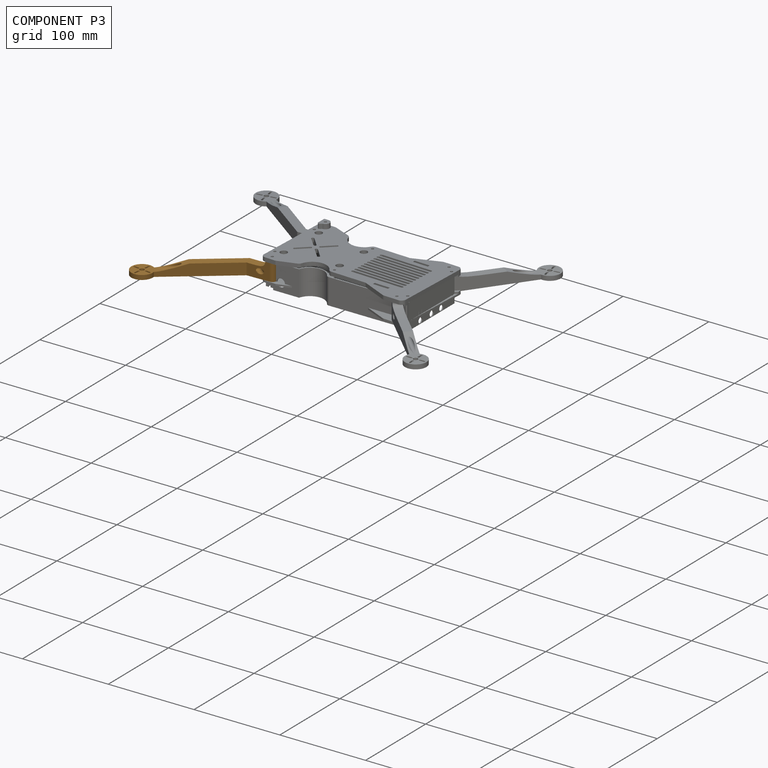
[diagram: component P3 — assembled]
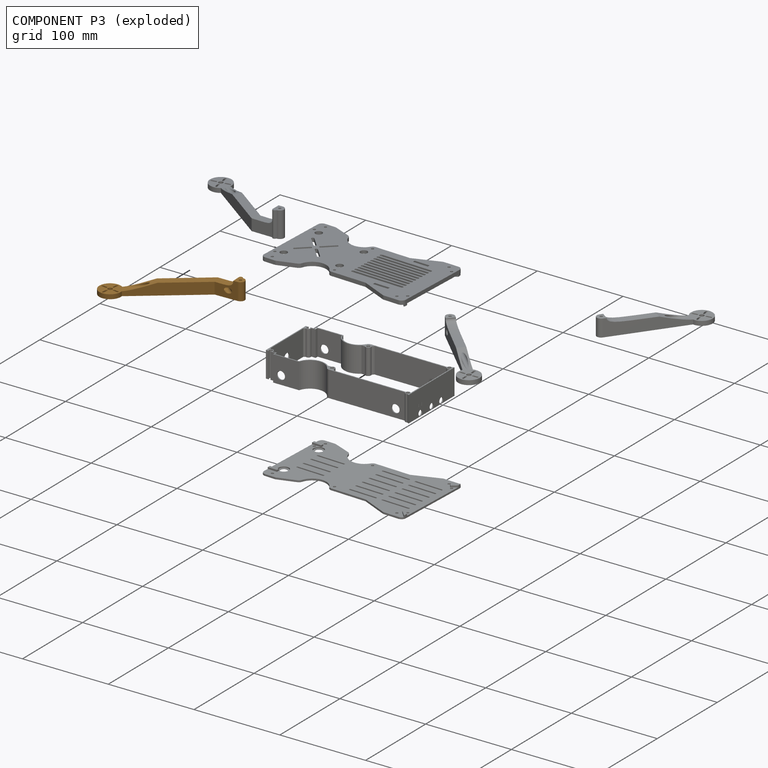
[diagram: component P3 — exploded]
COMPONENT P3 — geometry summary (no construction recipe available for this part):
  bounding box: 141.4 x 34.8 x 20.0 mm
  B-rep topology: 1 solid, 36 faces, 198 edges
  volume: 14924 mm^3 (15% of its bounding box)
Held by: REVOLUTE mate "Revolute 4" to P5.
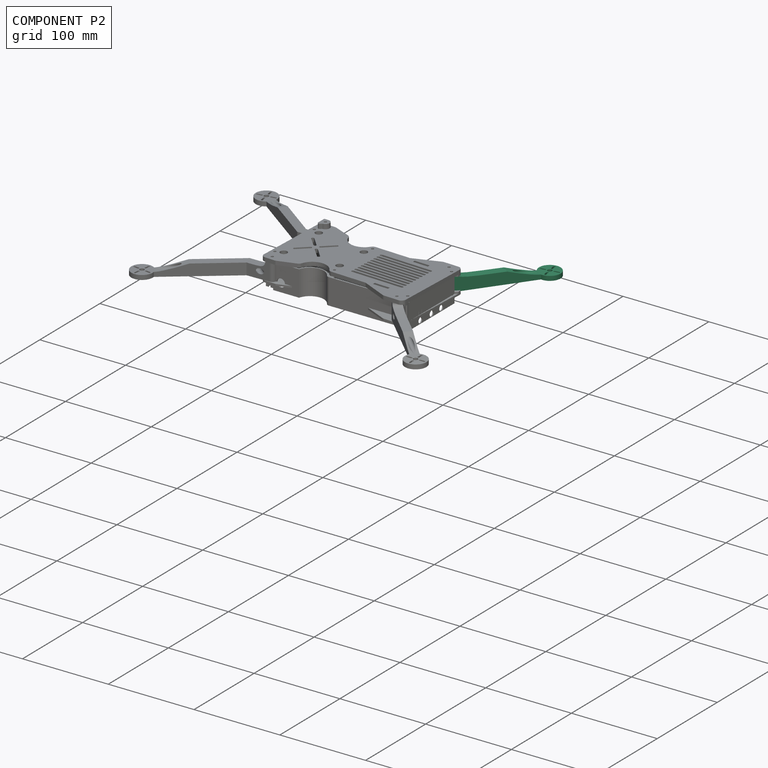
[diagram: component P2 — assembled]
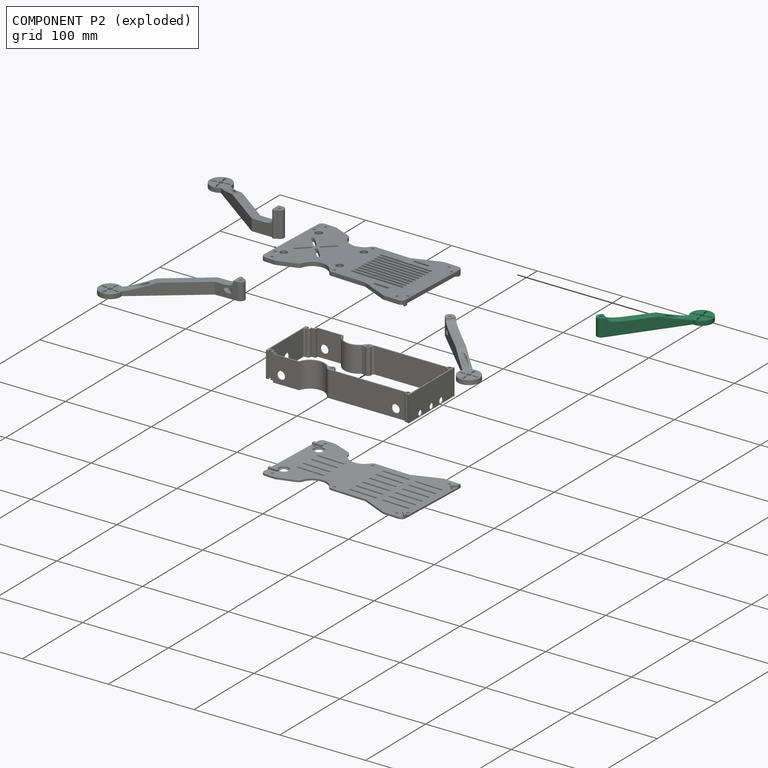
[diagram: component P2 — exploded]
COMPONENT P2 — recipe-attached (CADFS 00454914, mesh-verified: the recipe's output STEP matches this component's geometry to below the mesh-comparison resolution (tessellation chordal tolerance ~0.186 mm)).
Held by: REVOLUTE mate "Revolute 5" to P0.
Construction recipe (FeatureScript — the CAD program that rebuilds this solid; sketch coordinates are in the units given by the * unit suffixes, e.g. mm):

FeatureScript 2433;
import(path : "onshape/std/geometry.fs", version : "2433.0");
import(path : "onshape/std/common.fs", version : "2433.0");
const mm = millimeter;
const VERTEX = EntityType.VERTEX;
const EDGE = EntityType.EDGE;
const FACE = EntityType.FACE;
const BODY = EntityType.BODY;
function v(x, y){return vector(x, y);}
function OD(order){return orderDisambiguation(order);}
function OSD(set){return originalSetDisambiguation(set);}
function TD(topology){return topologyDisambiguation(topology);}
function TDD(query){return trueDependencyDisambiguation(query);}
function sQuery(a, b, c) {return sketchEntityQuery(a, b, c);}

annotation { "Feature Type Name" : "Feature", "Feature Type Description" : "" }
export const myFeature = defineFeature(function(context is Context, id is Id, definition is map)
    precondition{}
    {
        {
            var Q0;
            Q0=qCreatedBy(makeId("Top.planeOp"),FACE);
            var sketch = newSketch(context, id + "F0", { "sketchPlane" : qUnion([Q0])});
            skLineSegment(sketch, "E0", {"start": v(-139.16, 59.15) * mm, "end": v(-37.16, 59.15) * mm, "construction": true});
            skArc(sketch, "E1", {"start": v(-48.13, 53.17) * mm, "mid": v(-24.7, 60.23) * mm, "end": v(-49, 63.17) * mm});
            skLineSegment(sketch, "E2", {"start": v(-139.16, 63.17) * mm, "end": v(-49, 63.17) * mm});
            skLineSegment(sketch, "E3", {"start": v(-139.16, 53.17) * mm, "end": v(-48.13, 53.17) * mm});
            skCircle(sketch, "E4", {"center": v(-37.16, 59.15) * mm, "radius": 2.64 * mm});
            skArc(sketch, "E5.0.startCap", {"start": v(-44.79, 65.37) * mm, "mid": v(-44.79, 66.78) * mm, "end": v(-43.37, 66.78) * mm});
            skArc(sketch, "E5.0.endCap", {"start": v(-39.99, 63.4) * mm, "mid": v(-39.99, 61.98) * mm, "end": v(-41.4, 61.98) * mm});
            skLineSegment(sketch, "E5.0.left", {"start": v(-43.37, 66.78) * mm, "end": v(-39.99, 63.4) * mm});
            skLineSegment(sketch, "E5.0.right", {"start": v(-44.79, 65.37) * mm, "end": v(-41.4, 61.98) * mm});
            skLineSegment(sketch, "E6", {"start": v(-37.16, 59.15) * mm, "end": v(-37.16, 66.76) * mm, "construction": true});
            skArc(sketch, "E7.MirrorCS", {"start": v(-29.53, 65.37) * mm, "mid": v(-29.53, 66.78) * mm, "end": v(-30.94, 66.78) * mm});
            skArc(sketch, "E8.MirrorCS", {"start": v(-34.33, 63.4) * mm, "mid": v(-34.33, 61.98) * mm, "end": v(-32.92, 61.98) * mm});
            skLineSegment(sketch, "E9.MirrorCS", {"start": v(-29.53, 65.37) * mm, "end": v(-32.92, 61.98) * mm});
            skLineSegment(sketch, "E10.MirrorCS", {"start": v(-30.94, 66.78) * mm, "end": v(-34.33, 63.4) * mm});
            skLineSegment(sketch, "E11.MirrorCS", {"start": v(-30.94, 51.52) * mm, "end": v(-34.33, 54.91) * mm});
            skArc(sketch, "E12.MirrorCS", {"start": v(-29.53, 52.94) * mm, "mid": v(-29.53, 51.52) * mm, "end": v(-30.94, 51.52) * mm});
            skLineSegment(sketch, "E13.MirrorCS", {"start": v(-29.53, 52.94) * mm, "end": v(-32.92, 56.33) * mm});
            skArc(sketch, "E14.MirrorCS", {"start": v(-34.33, 54.91) * mm, "mid": v(-34.33, 56.33) * mm, "end": v(-32.92, 56.33) * mm});
            skLineSegment(sketch, "E15.MirrorCS", {"start": v(-44.79, 52.94) * mm, "end": v(-41.4, 56.33) * mm});
            skLineSegment(sketch, "E16.MirrorCS", {"start": v(-43.37, 51.52) * mm, "end": v(-39.99, 54.91) * mm});
            skArc(sketch, "E17.MirrorCS", {"start": v(-39.99, 54.91) * mm, "mid": v(-39.99, 56.33) * mm, "end": v(-41.4, 56.33) * mm});
            skArc(sketch, "E18.MirrorCS", {"start": v(-44.79, 52.94) * mm, "mid": v(-44.79, 51.52) * mm, "end": v(-43.37, 51.52) * mm});
            skLineSegment(sketch, "E19", {"start": v(-37.16, 59.15) * mm, "end": v(-44.76, 66.76) * mm, "construction": true});
            skLineSegment(sketch, "E20", {"start": v(-139.16, 53.17) * mm, "end": v(-139.16, 63.17) * mm, "construction": true});
            skPoint(sketch, "E21", {"position": v(-139.16, 58.17) * mm});
            skArc(sketch, "E22", {"start": v(-139.16, 53.17) * mm, "mid": v(-144.16, 58.17) * mm, "end": v(-139.16, 63.17) * mm});
            skCircle(sketch, "E23", {"center": v(-139.16, 58.17) * mm, "radius": 1.5 * mm});
            skSolve(sketch);
        }
        {
            var Q0;
            Q0=qSketchRegion(id+"F0",true);
            extrude(context, id + "F1", {"entities" : qUnion([Q0]), "depth" : 20 * mm});
        }
        {
            var Q0;
            Q0=makeQuery(id+"F1.opExtrude","SWEPT_FACE",FACE,{"disambiguationData":[OSD([sQuery(id+"F0.wireOp",EDGE,"E3")])]});
            var sketch = newSketch(context, id + "F2", { "sketchPlane" : qUnion([Q0])});
            skFitSpline(sketch, "E24", {"points": [v(-48.13, 5.2) * mm, v(-101.02, 20) * mm], "startDerivative": vector(-37.65, 1.6) * mm, "endDerivative": vector(-23.18, 9.57) * mm});
            skLineSegment(sketch, "E25", {"start": v(-48.13, 5.2) * mm, "end": v(66.1, 5.2) * mm});
            skLineSegment(sketch, "E26", {"start": v(66.1, 5.2) * mm, "end": v(64.34, 23.02) * mm});
            skLineSegment(sketch, "E27", {"start": v(64.34, 23.02) * mm, "end": v(-14.17, 23.97) * mm});
            skLineSegment(sketch, "E28", {"start": v(-14.17, 23.97) * mm, "end": v(-21.08, 20) * mm});
            skLineSegment(sketch, "E29", {"start": v(-48.13, 13.43) * mm, "end": v(-82.25, 13.43) * mm});
            skLineSegment(sketch, "E30", {"start": v(-48.13, 13.43) * mm, "end": v(-48.13, 24.34) * mm});
            skLineSegment(sketch, "E31", {"start": v(-48.13, 24.34) * mm, "end": v(-21.08, 20) * mm});
            skSolve(sketch);
        }
        {
            var Q0;
            Q0=qSketchRegion(id+"F2",true);
            extrude(context, id + "F3", {"entities" : qUnion([Q0]), "operationType" : NewBodyOperationType.REMOVE, "oppositeDirection" : true, "depth" : 25 * mm, "hasSecondDirection" : true, "secondDirectionOppositeDirection" : false, "secondDirectionDepth" : 25 * mm});
        }
        {
            var Q0;
            Q0=makeQuery(id+"F3.boolean.opBoolean","COPY",FACE,{"derivedFrom":makeQuery(id+"F3.opExtrude","SWEPT_FACE",FACE,{"disambiguationData":[OSD([sQuery(id+"F2.wireOp",EDGE,"E25")])]})});
            var sketch = newSketch(context, id + "F4", { "sketchPlane" : qUnion([Q0])});
            skLineSegment(sketch, "E32", {"start": v(-86.71, 58.17) * mm, "end": v(-61.2, 58.17) * mm});
            skLineSegment(sketch, "E33", {"start": v(-86.71, 58.17) * mm, "end": v(-125.32, 58.17) * mm});
            skLineSegment(sketch, "E34", {"start": v(-125.32, 58.17) * mm, "end": v(-138.96, 75.4) * mm});
            skSolve(sketch);
        }
        {
            var Q0;
            Q0=makeQuery(id+"F3.boolean.opBoolean","COPY",EDGE,{"derivedFrom":makeQuery(id+"F3.opExtrude","SWEPT_EDGE",EDGE,{"disambiguationData":[OSD([sQuery(id+"F0.wireOp",EDGE,"E1"),sQuery(id+"F0.wireOp",EDGE,"E3"),sQuery(id+"F2.wireOp",EDGE,"E24"),sQuery(id+"F2.wireOp",EDGE,"E25")])]})});
            cPlane(context, id + "F5", {"entities" : qUnion([Q0]), "cplaneType" : CPlaneType.LINE_ANGLE, "offset" : 25 * mm, "angle" : 90 * degree, "width" : 150 * mm, "height" : 150 * mm});
        }
        {
            var Q0;
            Q0=qCreatedBy(id+"F5.planeOp",FACE);
            var sketch = newSketch(context, id + "F6", { "sketchPlane" : qUnion([Q0])});
            skLineSegment(sketch, "E35.0", {"start": v(65.14, 5.2) * mm, "end": v(53.17, 5.2) * mm, "construction": true});
            skCircle(sketch, "E36", {"center": v(58.2, 8.2) * mm, "radius": 3 * mm});
            skSolve(sketch);
        }
        {
            var Q0;
            Q0=qSketchRegion(id+"F6",true);
            var Q1;
            Q1=qConstructionFilter(qBodyType(qCreatedBy(id+"F4",EDGE),BodyType.WIRE),ConstructionObject.NO);
            sweep(context, id + "F7", {"operationType" : NewBodyOperationType.REMOVE, "profiles" : qUnion([Q0]), "path" : qUnion([Q1])});
        }
        {
            var Q0;
            Q0=makeQuery(id+"F1.opExtrude","SWEPT_FACE",FACE,{"disambiguationData":[OSD([sQuery(id+"F0.wireOp",EDGE,"E3")])]});
            var sketch = newSketch(context, id + "F8", { "sketchPlane" : qUnion([Q0])});
            skPoint(sketch, "E37.0", {"position": v(-82.25, 13.43) * mm});
            skFitSpline(sketch, "E38", {"points": [v(-82.25, 13.43) * mm, v(-135.35, 20) * mm], "startDerivative": vector(-96, 1.58) * mm, "endDerivative": vector(1.3, 22.57) * mm});
            skLineSegment(sketch, "E39", {"start": v(-82.25, 13.43) * mm, "end": v(-32.97, 11.71) * mm});
            skLineSegment(sketch, "E40", {"start": v(-32.97, 11.71) * mm, "end": v(-32.97, 37.38) * mm});
            skLineSegment(sketch, "E41", {"start": v(-32.97, 37.38) * mm, "end": v(-135.35, 20) * mm});
            skSolve(sketch);
        }
        {
            var Q0;
            Q0 = qSketchRegion(id + "F8", true);
            extrude(context, id + "F9", {"entities" : qUnion([Q0]), "operationType" : NewBodyOperationType.REMOVE, "oppositeDirection" : true, "depth" : 25 * mm});
        }
    });
